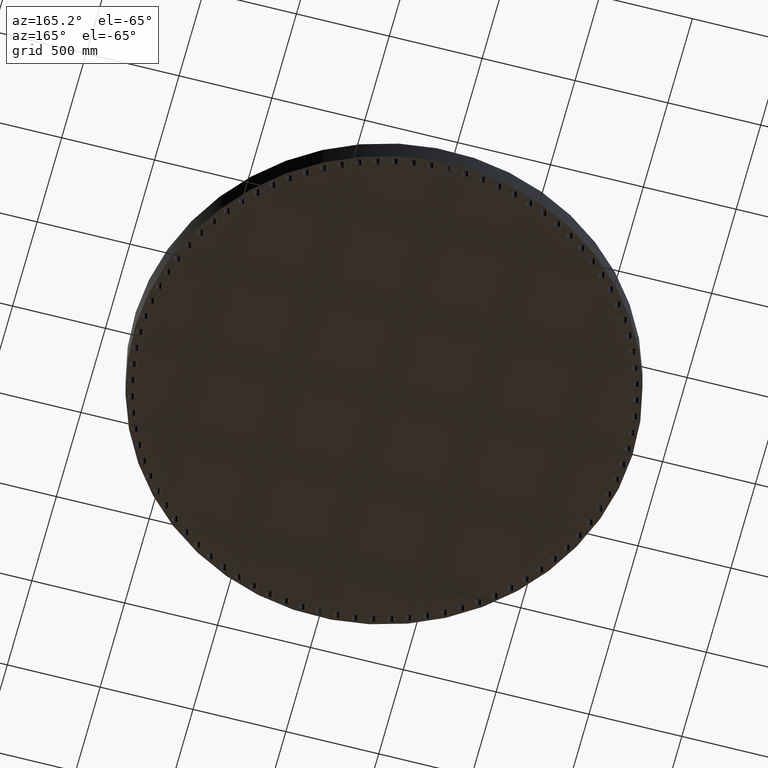
[diagram: clean part render]
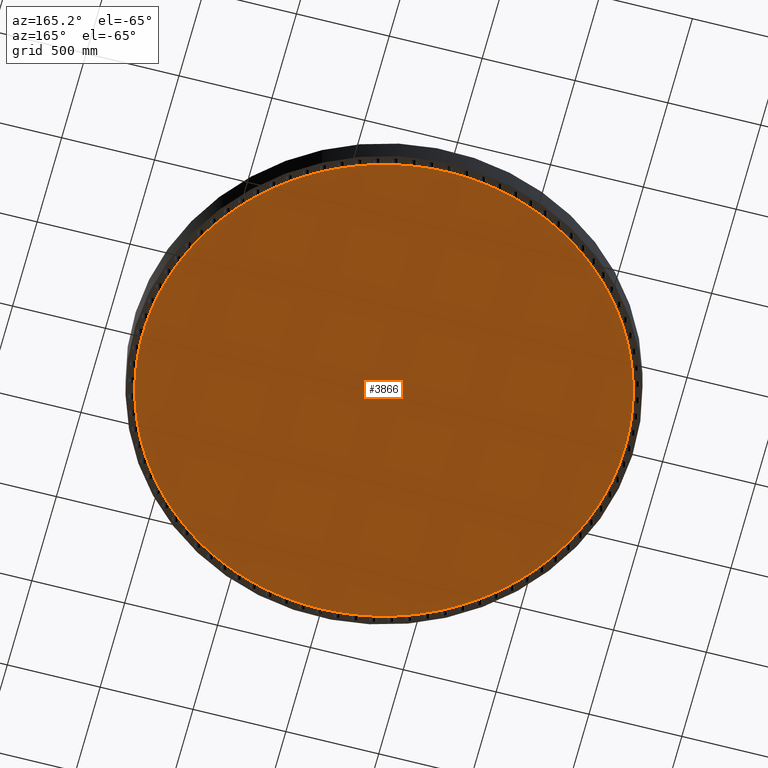
[diagram: same view with one face highlighted and labeled with its STEP entity id]
A machine part, auxiliary view. The second image highlights one B-rep face of the part: STEP entity #3866.
In plain terms, the highlighted planar face has unit normal (0, 0, -1).
Its self-contained STEP definition (entity closure, byte-faithful):
#91=AXIS2_PLACEMENT_3D('Circle Axis2P3D',#89,#90,$) ;
#188=AXIS2_PLACEMENT_3D('Circle Axis2P3D',#186,#187,$) ;
#230=AXIS2_PLACEMENT_3D('Circle Axis2P3D',#228,#229,$) ;
#258=AXIS2_PLACEMENT_3D('Circle Axis2P3D',#256,#257,$) ;
#300=AXIS2_PLACEMENT_3D('Circle Axis2P3D',#298,#299,$) ;
#319=AXIS2_PLACEMENT_3D('Circle Axis2P3D',#317,#318,$) ;
#354=AXIS2_PLACEMENT_3D('Circle Axis2P3D',#352,#353,$) ;
#389=AXIS2_PLACEMENT_3D('Circle Axis2P3D',#387,#388,$) ;
#424=AXIS2_PLACEMENT_3D('Circle Axis2P3D',#422,#423,$) ;
#459=AXIS2_PLACEMENT_3D('Circle Axis2P3D',#457,#458,$) ;
#494=AXIS2_PLACEMENT_3D('Circle Axis2P3D',#492,#493,$) ;
#529=AXIS2_PLACEMENT_3D('Circle Axis2P3D',#527,#528,$) ;
#573=AXIS2_PLACEMENT_3D('Circle Axis2P3D',#571,#572,$) ;
#599=AXIS2_PLACEMENT_3D('Circle Axis2P3D',#597,#598,$) ;
#650=AXIS2_PLACEMENT_3D('Circle Axis2P3D',#648,#649,$) ;
#669=AXIS2_PLACEMENT_3D('Circle Axis2P3D',#667,#668,$) ;
#727=AXIS2_PLACEMENT_3D('Circle Axis2P3D',#725,#726,$) ;
#748=AXIS2_PLACEMENT_3D('Circle Axis2P3D',#746,#747,$) ;
#774=AXIS2_PLACEMENT_3D('Circle Axis2P3D',#772,#773,$) ;
#809=AXIS2_PLACEMENT_3D('Circle Axis2P3D',#807,#808,$) ;
#844=AXIS2_PLACEMENT_3D('Circle Axis2P3D',#842,#843,$) ;
#879=AXIS2_PLACEMENT_3D('Circle Axis2P3D',#877,#878,$) ;
#914=AXIS2_PLACEMENT_3D('Circle Axis2P3D',#912,#913,$) ;
#949=AXIS2_PLACEMENT_3D('Circle Axis2P3D',#947,#948,$) ;
#984=AXIS2_PLACEMENT_3D('Circle Axis2P3D',#982,#983,$) ;
#1019=AXIS2_PLACEMENT_3D('Circle Axis2P3D',#1017,#1018,$) ;
#1054=AXIS2_PLACEMENT_3D('Circle Axis2P3D',#1052,#1053,$) ;
#1089=AXIS2_PLACEMENT_3D('Circle Axis2P3D',#1087,#1088,$) ;
#1124=AXIS2_PLACEMENT_3D('Circle Axis2P3D',#1122,#1123,$) ;
#1168=AXIS2_PLACEMENT_3D('Circle Axis2P3D',#1166,#1167,$) ;
#1203=AXIS2_PLACEMENT_3D('Circle Axis2P3D',#1201,#1202,$) ;
#1238=AXIS2_PLACEMENT_3D('Circle Axis2P3D',#1236,#1237,$) ;
#1273=AXIS2_PLACEMENT_3D('Circle Axis2P3D',#1271,#1272,$) ;
#1308=AXIS2_PLACEMENT_3D('Circle Axis2P3D',#1306,#1307,$) ;
#1343=AXIS2_PLACEMENT_3D('Circle Axis2P3D',#1341,#1342,$) ;
#1378=AXIS2_PLACEMENT_3D('Circle Axis2P3D',#1376,#1377,$) ;
#1413=AXIS2_PLACEMENT_3D('Circle Axis2P3D',#1411,#1412,$) ;
#1448=AXIS2_PLACEMENT_3D('Circle Axis2P3D',#1446,#1447,$) ;
#1483=AXIS2_PLACEMENT_3D('Circle Axis2P3D',#1481,#1482,$) ;
#1518=AXIS2_PLACEMENT_3D('Circle Axis2P3D',#1516,#1517,$) ;
#1553=AXIS2_PLACEMENT_3D('Circle Axis2P3D',#1551,#1552,$) ;
#1588=AXIS2_PLACEMENT_3D('Circle Axis2P3D',#1586,#1587,$) ;
#1623=AXIS2_PLACEMENT_3D('Circle Axis2P3D',#1621,#1622,$) ;
#1658=AXIS2_PLACEMENT_3D('Circle Axis2P3D',#1656,#1657,$) ;
#1693=AXIS2_PLACEMENT_3D('Circle Axis2P3D',#1691,#1692,$) ;
#1735=AXIS2_PLACEMENT_3D('Circle Axis2P3D',#1733,#1734,$) ;
#1754=AXIS2_PLACEMENT_3D('Circle Axis2P3D',#1752,#1753,$) ;
#1789=AXIS2_PLACEMENT_3D('Circle Axis2P3D',#1787,#1788,$) ;
#1824=AXIS2_PLACEMENT_3D('Circle Axis2P3D',#1822,#1823,$) ;
#1859=AXIS2_PLACEMENT_3D('Circle Axis2P3D',#1857,#1858,$) ;
#1894=AXIS2_PLACEMENT_3D('Circle Axis2P3D',#1892,#1893,$) ;
#1938=AXIS2_PLACEMENT_3D('Circle Axis2P3D',#1936,#1937,$) ;
#1973=AXIS2_PLACEMENT_3D('Circle Axis2P3D',#1971,#1972,$) ;
#2008=AXIS2_PLACEMENT_3D('Circle Axis2P3D',#2006,#2007,$) ;
#2050=AXIS2_PLACEMENT_3D('Circle Axis2P3D',#2048,#2049,$) ;
#2069=AXIS2_PLACEMENT_3D('Circle Axis2P3D',#2067,#2068,$) ;
#2104=AXIS2_PLACEMENT_3D('Circle Axis2P3D',#2102,#2103,$) ;
#2139=AXIS2_PLACEMENT_3D('Circle Axis2P3D',#2137,#2138,$) ;
#2174=AXIS2_PLACEMENT_3D('Circle Axis2P3D',#2172,#2173,$) ;
#2225=AXIS2_PLACEMENT_3D('Circle Axis2P3D',#2223,#2224,$) ;
#2260=AXIS2_PLACEMENT_3D('Circle Axis2P3D',#2258,#2259,$) ;
#2279=AXIS2_PLACEMENT_3D('Circle Axis2P3D',#2277,#2278,$) ;
#2328=AXIS2_PLACEMENT_3D('Circle Axis2P3D',#2326,#2327,$) ;
#2340=AXIS2_PLACEMENT_3D('Circle Axis2P3D',#2338,#2339,$) ;
#2391=AXIS2_PLACEMENT_3D('Circle Axis2P3D',#2389,#2390,$) ;
#2426=AXIS2_PLACEMENT_3D('Circle Axis2P3D',#2424,#2425,$) ;
#2461=AXIS2_PLACEMENT_3D('Circle Axis2P3D',#2459,#2460,$) ;
#2496=AXIS2_PLACEMENT_3D('Circle Axis2P3D',#2494,#2495,$) ;
#2531=AXIS2_PLACEMENT_3D('Circle Axis2P3D',#2529,#2530,$) ;
#2566=AXIS2_PLACEMENT_3D('Circle Axis2P3D',#2564,#2565,$) ;
#2601=AXIS2_PLACEMENT_3D('Circle Axis2P3D',#2599,#2600,$) ;
#2636=AXIS2_PLACEMENT_3D('Circle Axis2P3D',#2634,#2635,$) ;
#2671=AXIS2_PLACEMENT_3D('Circle Axis2P3D',#2669,#2670,$) ;
#2706=AXIS2_PLACEMENT_3D('Circle Axis2P3D',#2704,#2705,$) ;
#2741=AXIS2_PLACEMENT_3D('Circle Axis2P3D',#2739,#2740,$) ;
#2776=AXIS2_PLACEMENT_3D('Circle Axis2P3D',#2774,#2775,$) ;
#2811=AXIS2_PLACEMENT_3D('Circle Axis2P3D',#2809,#2810,$) ;
#2846=AXIS2_PLACEMENT_3D('Circle Axis2P3D',#2844,#2845,$) ;
#2888=AXIS2_PLACEMENT_3D('Circle Axis2P3D',#2886,#2887,$) ;
#2923=AXIS2_PLACEMENT_3D('Circle Axis2P3D',#2921,#2922,$) ;
#2958=AXIS2_PLACEMENT_3D('Circle Axis2P3D',#2956,#2957,$) ;
#2970=AXIS2_PLACEMENT_3D('Circle Axis2P3D',#2968,#2969,$) ;
#3021=AXIS2_PLACEMENT_3D('Circle Axis2P3D',#3019,#3020,$) ;
#3056=AXIS2_PLACEMENT_3D('Circle Axis2P3D',#3054,#3055,$) ;
#3098=AXIS2_PLACEMENT_3D('Circle Axis2P3D',#3096,#3097,$) ;
#3126=AXIS2_PLACEMENT_3D('Circle Axis2P3D',#3124,#3125,$) ;
#3145=AXIS2_PLACEMENT_3D('Circle Axis2P3D',#3143,#3144,$) ;
#3180=AXIS2_PLACEMENT_3D('Circle Axis2P3D',#3178,#3179,$) ;
#3215=AXIS2_PLACEMENT_3D('Circle Axis2P3D',#3213,#3214,$) ;
#3251=AXIS2_PLACEMENT_3D('Plane Axis2P3D',#3248,#3249,#3250) ;
#3255=AXIS2_PLACEMENT_3D('Circle Axis2P3D',#3253,#3254,$) ;
#3260=AXIS2_PLACEMENT_3D('Circle Axis2P3D',#3258,#3259,$) ;
#3265=AXIS2_PLACEMENT_3D('Circle Axis2P3D',#3263,#3264,$) ;
#3270=AXIS2_PLACEMENT_3D('Circle Axis2P3D',#3268,#3269,$) ;
#3275=AXIS2_PLACEMENT_3D('Circle Axis2P3D',#3273,#3274,$) ;
#3280=AXIS2_PLACEMENT_3D('Circle Axis2P3D',#3278,#3279,$) ;
#3285=AXIS2_PLACEMENT_3D('Circle Axis2P3D',#3283,#3284,$) ;
#3290=AXIS2_PLACEMENT_3D('Circle Axis2P3D',#3288,#3289,$) ;
#3295=AXIS2_PLACEMENT_3D('Circle Axis2P3D',#3293,#3294,$) ;
#3300=AXIS2_PLACEMENT_3D('Circle Axis2P3D',#3298,#3299,$) ;
#3305=AXIS2_PLACEMENT_3D('Circle Axis2P3D',#3303,#3304,$) ;
#3310=AXIS2_PLACEMENT_3D('Circle Axis2P3D',#3308,#3309,$) ;
#3315=AXIS2_PLACEMENT_3D('Circle Axis2P3D',#3313,#3314,$) ;
#3320=AXIS2_PLACEMENT_3D('Circle Axis2P3D',#3318,#3319,$) ;
#3325=AXIS2_PLACEMENT_3D('Circle Axis2P3D',#3323,#3324,$) ;
#3330=AXIS2_PLACEMENT_3D('Circle Axis2P3D',#3328,#3329,$) ;
#3335=AXIS2_PLACEMENT_3D('Circle Axis2P3D',#3333,#3334,$) ;
#3340=AXIS2_PLACEMENT_3D('Circle Axis2P3D',#3338,#3339,$) ;
#3345=AXIS2_PLACEMENT_3D('Circle Axis2P3D',#3343,#3344,$) ;
#3350=AXIS2_PLACEMENT_3D('Circle Axis2P3D',#3348,#3349,$) ;
#3355=AXIS2_PLACEMENT_3D('Circle Axis2P3D',#3353,#3354,$) ;
#3360=AXIS2_PLACEMENT_3D('Circle Axis2P3D',#3358,#3359,$) ;
#3365=AXIS2_PLACEMENT_3D('Circle Axis2P3D',#3363,#3364,$) ;
#3370=AXIS2_PLACEMENT_3D('Circle Axis2P3D',#3368,#3369,$) ;
#3375=AXIS2_PLACEMENT_3D('Circle Axis2P3D',#3373,#3374,$) ;
#3380=AXIS2_PLACEMENT_3D('Circle Axis2P3D',#3378,#3379,$) ;
#3385=AXIS2_PLACEMENT_3D('Circle Axis2P3D',#3383,#3384,$) ;
#3390=AXIS2_PLACEMENT_3D('Circle Axis2P3D',#3388,#3389,$) ;
#3395=AXIS2_PLACEMENT_3D('Circle Axis2P3D',#3393,#3394,$) ;
#3400=AXIS2_PLACEMENT_3D('Circle Axis2P3D',#3398,#3399,$) ;
#3405=AXIS2_PLACEMENT_3D('Circle Axis2P3D',#3403,#3404,$) ;
#3410=AXIS2_PLACEMENT_3D('Circle Axis2P3D',#3408,#3409,$) ;
#3415=AXIS2_PLACEMENT_3D('Circle Axis2P3D',#3413,#3414,$) ;
#3420=AXIS2_PLACEMENT_3D('Circle Axis2P3D',#3418,#3419,$) ;
#3425=AXIS2_PLACEMENT_3D('Circle Axis2P3D',#3423,#3424,$) ;
#3430=AXIS2_PLACEMENT_3D('Circle Axis2P3D',#3428,#3429,$) ;
#3435=AXIS2_PLACEMENT_3D('Circle Axis2P3D',#3433,#3434,$) ;
#3440=AXIS2_PLACEMENT_3D('Circle Axis2P3D',#3438,#3439,$) ;
#3445=AXIS2_PLACEMENT_3D('Circle Axis2P3D',#3443,#3444,$) ;
#3450=AXIS2_PLACEMENT_3D('Circle Axis2P3D',#3448,#3449,$) ;
#3455=AXIS2_PLACEMENT_3D('Circle Axis2P3D',#3453,#3454,$) ;
#3460=AXIS2_PLACEMENT_3D('Circle Axis2P3D',#3458,#3459,$) ;
#3465=AXIS2_PLACEMENT_3D('Circle Axis2P3D',#3463,#3464,$) ;
#3470=AXIS2_PLACEMENT_3D('Circle Axis2P3D',#3468,#3469,$) ;
#3475=AXIS2_PLACEMENT_3D('Circle Axis2P3D',#3473,#3474,$) ;
#3480=AXIS2_PLACEMENT_3D('Circle Axis2P3D',#3478,#3479,$) ;
#3485=AXIS2_PLACEMENT_3D('Circle Axis2P3D',#3483,#3484,$) ;
#3490=AXIS2_PLACEMENT_3D('Circle Axis2P3D',#3488,#3489,$) ;
#3495=AXIS2_PLACEMENT_3D('Circle Axis2P3D',#3493,#3494,$) ;
#3500=AXIS2_PLACEMENT_3D('Circle Axis2P3D',#3498,#3499,$) ;
#3505=AXIS2_PLACEMENT_3D('Circle Axis2P3D',#3503,#3504,$) ;
#3510=AXIS2_PLACEMENT_3D('Circle Axis2P3D',#3508,#3509,$) ;
#3515=AXIS2_PLACEMENT_3D('Circle Axis2P3D',#3513,#3514,$) ;
#3520=AXIS2_PLACEMENT_3D('Circle Axis2P3D',#3518,#3519,$) ;
#3525=AXIS2_PLACEMENT_3D('Circle Axis2P3D',#3523,#3524,$) ;
#3530=AXIS2_PLACEMENT_3D('Circle Axis2P3D',#3528,#3529,$) ;
#3535=AXIS2_PLACEMENT_3D('Circle Axis2P3D',#3533,#3534,$) ;
#3540=AXIS2_PLACEMENT_3D('Circle Axis2P3D',#3538,#3539,$) ;
#3545=AXIS2_PLACEMENT_3D('Circle Axis2P3D',#3543,#3544,$) ;
#3550=AXIS2_PLACEMENT_3D('Circle Axis2P3D',#3548,#3549,$) ;
#3555=AXIS2_PLACEMENT_3D('Circle Axis2P3D',#3553,#3554,$) ;
#3560=AXIS2_PLACEMENT_3D('Circle Axis2P3D',#3558,#3559,$) ;
#3565=AXIS2_PLACEMENT_3D('Circle Axis2P3D',#3563,#3564,$) ;
#3570=AXIS2_PLACEMENT_3D('Circle Axis2P3D',#3568,#3569,$) ;
#3575=AXIS2_PLACEMENT_3D('Circle Axis2P3D',#3573,#3574,$) ;
#3580=AXIS2_PLACEMENT_3D('Circle Axis2P3D',#3578,#3579,$) ;
#3585=AXIS2_PLACEMENT_3D('Circle Axis2P3D',#3583,#3584,$) ;
#3590=AXIS2_PLACEMENT_3D('Circle Axis2P3D',#3588,#3589,$) ;
#3595=AXIS2_PLACEMENT_3D('Circle Axis2P3D',#3593,#3594,$) ;
#3600=AXIS2_PLACEMENT_3D('Circle Axis2P3D',#3598,#3599,$) ;
#3605=AXIS2_PLACEMENT_3D('Circle Axis2P3D',#3603,#3604,$) ;
#3610=AXIS2_PLACEMENT_3D('Circle Axis2P3D',#3608,#3609,$) ;
#3615=AXIS2_PLACEMENT_3D('Circle Axis2P3D',#3613,#3614,$) ;
#3620=AXIS2_PLACEMENT_3D('Circle Axis2P3D',#3618,#3619,$) ;
#3625=AXIS2_PLACEMENT_3D('Circle Axis2P3D',#3623,#3624,$) ;
#3630=AXIS2_PLACEMENT_3D('Circle Axis2P3D',#3628,#3629,$) ;
#3635=AXIS2_PLACEMENT_3D('Circle Axis2P3D',#3633,#3634,$) ;
#3640=AXIS2_PLACEMENT_3D('Circle Axis2P3D',#3638,#3639,$) ;
#3645=AXIS2_PLACEMENT_3D('Circle Axis2P3D',#3643,#3644,$) ;
#3650=AXIS2_PLACEMENT_3D('Circle Axis2P3D',#3648,#3649,$) ;
#3655=AXIS2_PLACEMENT_3D('Circle Axis2P3D',#3653,#3654,$) ;
#3660=AXIS2_PLACEMENT_3D('Circle Axis2P3D',#3658,#3659,$) ;
#3665=AXIS2_PLACEMENT_3D('Circle Axis2P3D',#3663,#3664,$) ;
#3670=AXIS2_PLACEMENT_3D('Circle Axis2P3D',#3668,#3669,$) ;
#3675=AXIS2_PLACEMENT_3D('Circle Axis2P3D',#3673,#3674,$) ;
#3680=AXIS2_PLACEMENT_3D('Circle Axis2P3D',#3678,#3679,$) ;
#3685=AXIS2_PLACEMENT_3D('Circle Axis2P3D',#3683,#3684,$) ;
#86=CARTESIAN_POINT('Vertex',(51.0649335751,-0.08236499968,-0.0625000000002)) ;
#89=CARTESIAN_POINT('Axis2P3D Location',(51.7500000002,0.,-0.0625000000002)) ;
#93=CARTESIAN_POINT('Vertex',(51.0649335751,0.0823649996801,-0.0625000000002)) ;
#186=CARTESIAN_POINT('Axis2P3D Location',(0.,0.,-0.0625000000002)) ;
#190=CARTESIAN_POINT('Vertex',(50.5568879425,7.18577112043,-0.0625000000002)) ;
#192=CARTESIAN_POINT('Vertex',(50.9289501251,3.72508579447,-0.0625000000002)) ;
#228=CARTESIAN_POINT('Axis2P3D Location',(0.,0.,-0.0625000000002)) ;
#232=CARTESIAN_POINT('Vertex',(50.9407018287,3.56077550827,-0.0625000000002)) ;
#253=CARTESIAN_POINT('Vertex',(50.5334444192,7.34882440592,-0.0625000000002)) ;
#256=CARTESIAN_POINT('Axis2P3D Location',(0.,0.,-0.0625000000002)) ;
#260=CARTESIAN_POINT('Vertex',(49.9154477439,10.7741496901,-0.0625000000002)) ;
#295=CARTESIAN_POINT('Vertex',(49.8804318639,10.9351150927,-0.0625000000002)) ;
#298=CARTESIAN_POINT('Axis2P3D Location',(0.,0.,-0.0625000000002)) ;
#302=CARTESIAN_POINT('Vertex',(49.0196498653,14.3076256626,-0.0625000000002)) ;
#317=CARTESIAN_POINT('Axis2P3D Location',(0.,0.,-0.0625000000002)) ;
#321=CARTESIAN_POINT('Vertex',(47.8740590873,17.7681932543,-0.0625000000002)) ;
#323=CARTESIAN_POINT('Vertex',(48.9732400614,14.4656829395,-0.0625000000002)) ;
#352=CARTESIAN_POINT('Axis2P3D Location',(0.,0.,-0.0625000000002)) ;
#356=CARTESIAN_POINT('Vertex',(46.484513078,21.138218206,-0.0625000000002)) ;
#358=CARTESIAN_POINT('Vertex',(47.8164918533,17.9225369819,-0.0625000000002)) ;
#387=CARTESIAN_POINT('Axis2P3D Location',(0.,0.,-0.0625000000002)) ;
#391=CARTESIAN_POINT('Vertex',(44.8580926451,24.4005276431,-0.0625000000002)) ;
#393=CARTESIAN_POINT('Vertex',(46.4160817631,21.288061884,-0.0625000000002)) ;
#422=CARTESIAN_POINT('Axis2P3D Location',(0.,0.,-0.0625000000002)) ;
#426=CARTESIAN_POINT('Vertex',(43.0030856546,27.5384975844,-0.0625000000002)) ;
#428=CARTESIAN_POINT('Vertex',(44.7791459599,24.5451077025,-0.0625000000002)) ;
#457=CARTESIAN_POINT('Axis2P3D Location',(0.,0.,-0.0625000000002)) ;
#461=CARTESIAN_POINT('Vertex',(40.9289447967,30.5361376544,-0.0625000000002)) ;
#463=CARTESIAN_POINT('Vertex',(42.9140258931,27.6770772783,-0.0625000000002)) ;
#492=CARTESIAN_POINT('Axis2P3D Location',(0.,0.,-0.0625000000002)) ;
#496=CARTESIAN_POINT('Vertex',(38.6462394179,33.3781725664,-0.0625000000002)) ;
#498=CARTESIAN_POINT('Vertex',(40.8302257871,30.6680108125,-0.0625000000002)) ;
#527=CARTESIAN_POINT('Axis2P3D Location',(0.,0.,-0.0625000000002)) ;
#531=CARTESIAN_POINT('Vertex',(36.1666016616,36.050119962,-0.0625000000002)) ;
#533=CARTESIAN_POINT('Vertex',(38.5383642097,33.5026671933,-0.0625000000002)) ;
#568=CARTESIAN_POINT('Vertex',(36.050119962,36.1666016616,-0.0625000000002)) ;
#571=CARTESIAN_POINT('Axis2P3D Location',(0.,0.,-0.0625000000002)) ;
#575=CARTESIAN_POINT('Vertex',(33.5026671933,38.5383642097,-0.0625000000002)) ;
#597=CARTESIAN_POINT('Axis2P3D Location',(0.,0.,-0.0625000000002)) ;
#601=CARTESIAN_POINT('Vertex',(27.6770772783,42.9140258931,-0.0625000000002)) ;
#603=CARTESIAN_POINT('Vertex',(30.5361376544,40.9289447967,-0.0625000000002)) ;
#645=CARTESIAN_POINT('Vertex',(27.5384975844,43.0030856546,-0.0625000000002)) ;
#648=CARTESIAN_POINT('Axis2P3D Location',(0.,0.,-0.0625000000002)) ;
#652=CARTESIAN_POINT('Vertex',(24.5451077025,44.7791459599,-0.0625000000002)) ;
#667=CARTESIAN_POINT('Axis2P3D Location',(0.,0.,-0.0625000000002)) ;
#671=CARTESIAN_POINT('Vertex',(30.6680108125,40.8302257871,-0.0625000000002)) ;
#673=CARTESIAN_POINT('Vertex',(33.3781725664,38.6462394179,-0.0625000000002)) ;
#708=CARTESIAN_POINT('Vertex',(21.288061884,46.4160817631,-0.0625000000002)) ;
#722=CARTESIAN_POINT('Vertex',(24.4005276431,44.8580926451,-0.0625000000002)) ;
#725=CARTESIAN_POINT('Axis2P3D Location',(0.,0.,-0.0625000000002)) ;
#743=CARTESIAN_POINT('Vertex',(21.138218206,46.484513078,-0.0625000000002)) ;
#746=CARTESIAN_POINT('Axis2P3D Location',(0.,0.,-0.0625000000002)) ;
#750=CARTESIAN_POINT('Vertex',(17.9225369819,47.8164918533,-0.0625000000002)) ;
#772=CARTESIAN_POINT('Axis2P3D Location',(0.,0.,-0.0625000000002)) ;
#776=CARTESIAN_POINT('Vertex',(10.9351150927,49.8804318639,-0.0625000000002)) ;
#778=CARTESIAN_POINT('Vertex',(14.3076256626,49.0196498653,-0.0625000000002)) ;
#807=CARTESIAN_POINT('Axis2P3D Location',(0.,0.,-0.0625000000002)) ;
#811=CARTESIAN_POINT('Vertex',(7.34882440592,50.5334444192,-0.0625000000002)) ;
#813=CARTESIAN_POINT('Vertex',(10.7741496901,49.9154477439,-0.0625000000002)) ;
#842=CARTESIAN_POINT('Axis2P3D Location',(0.,0.,-0.0625000000002)) ;
#846=CARTESIAN_POINT('Vertex',(3.72508579447,50.9289501251,-0.0625000000002)) ;
#848=CARTESIAN_POINT('Vertex',(7.18577112043,50.5568879425,-0.0625000000002)) ;
#877=CARTESIAN_POINT('Axis2P3D Location',(0.,0.,-0.0625000000002)) ;
#881=CARTESIAN_POINT('Vertex',(0.08236499968,51.0649335751,-0.0625000000002)) ;
#883=CARTESIAN_POINT('Vertex',(3.56077550827,50.9407018287,-0.0625000000002)) ;
#912=CARTESIAN_POINT('Axis2P3D Location',(0.,0.,-0.0625000000002)) ;
#916=CARTESIAN_POINT('Vertex',(-3.56077550827,50.9407018287,-0.0625000000002)) ;
#918=CARTESIAN_POINT('Vertex',(-0.0823649996801,51.0649335751,-0.0625000000002)) ;
#947=CARTESIAN_POINT('Axis2P3D Location',(0.,0.,-0.0625000000002)) ;
#951=CARTESIAN_POINT('Vertex',(-7.18577112043,50.5568879425,-0.0625000000002)) ;
#953=CARTESIAN_POINT('Vertex',(-3.72508579447,50.9289501251,-0.0625000000002)) ;
#982=CARTESIAN_POINT('Axis2P3D Location',(0.,0.,-0.0625000000002)) ;
#986=CARTESIAN_POINT('Vertex',(-10.7741496901,49.9154477439,-0.0625000000002)) ;
#988=CARTESIAN_POINT('Vertex',(-7.34882440592,50.5334444192,-0.0625000000002)) ;
#1017=CARTESIAN_POINT('Axis2P3D Location',(0.,0.,-0.0625000000002)) ;
#1021=CARTESIAN_POINT('Vertex',(-14.3076256626,49.0196498653,-0.0625000000002)) ;
#1023=CARTESIAN_POINT('Vertex',(-10.9351150927,49.8804318639,-0.0625000000002)) ;
#1052=CARTESIAN_POINT('Axis2P3D Location',(0.,0.,-0.0625000000002)) ;
#1056=CARTESIAN_POINT('Vertex',(-17.7681932543,47.8740590873,-0.0625000000002)) ;
#1058=CARTESIAN_POINT('Vertex',(-14.4656829395,48.9732400614,-0.0625000000002)) ;
#1087=CARTESIAN_POINT('Axis2P3D Location',(0.,0.,-0.0625000000002)) ;
#1091=CARTESIAN_POINT('Vertex',(-21.138218206,46.484513078,-0.0625000000002)) ;
#1093=CARTESIAN_POINT('Vertex',(-17.9225369819,47.8164918533,-0.0625000000002)) ;
#1122=CARTESIAN_POINT('Axis2P3D Location',(0.,0.,-0.0625000000002)) ;
#1126=CARTESIAN_POINT('Vertex',(-24.4005276431,44.8580926451,-0.0625000000002)) ;
#1128=CARTESIAN_POINT('Vertex',(-21.288061884,46.4160817631,-0.0625000000002)) ;
#1163=CARTESIAN_POINT('Vertex',(-24.5451077025,44.7791459599,-0.0625000000002)) ;
#1166=CARTESIAN_POINT('Axis2P3D Location',(0.,0.,-0.0625000000002)) ;
#1170=CARTESIAN_POINT('Vertex',(-27.5384975844,43.0030856546,-0.0625000000002)) ;
#1198=CARTESIAN_POINT('Vertex',(-27.6770772783,42.9140258931,-0.0625000000002)) ;
#1201=CARTESIAN_POINT('Axis2P3D Location',(0.,0.,-0.0625000000002)) ;
#1205=CARTESIAN_POINT('Vertex',(-30.5361376544,40.9289447967,-0.0625000000002)) ;
#1233=CARTESIAN_POINT('Vertex',(-30.6680108125,40.8302257871,-0.0625000000002)) ;
#1236=CARTESIAN_POINT('Axis2P3D Location',(0.,0.,-0.0625000000002)) ;
#1240=CARTESIAN_POINT('Vertex',(-33.3781725664,38.6462394179,-0.0625000000002)) ;
#1268=CARTESIAN_POINT('Vertex',(-33.5026671933,38.5383642097,-0.0625000000002)) ;
#1271=CARTESIAN_POINT('Axis2P3D Location',(0.,0.,-0.0625000000002)) ;
#1275=CARTESIAN_POINT('Vertex',(-36.050119962,36.1666016616,-0.0625000000002)) ;
#1303=CARTESIAN_POINT('Vertex',(-36.1666016616,36.050119962,-0.0625000000002)) ;
#1306=CARTESIAN_POINT('Axis2P3D Location',(0.,0.,-0.0625000000002)) ;
#1310=CARTESIAN_POINT('Vertex',(-38.5383642097,33.5026671933,-0.0625000000002)) ;
#1338=CARTESIAN_POINT('Vertex',(-38.6462394179,33.3781725664,-0.0625000000002)) ;
#1341=CARTESIAN_POINT('Axis2P3D Location',(0.,0.,-0.0625000000002)) ;
#1345=CARTESIAN_POINT('Vertex',(-40.8302257871,30.6680108125,-0.0625000000002)) ;
#1373=CARTESIAN_POINT('Vertex',(-40.9289447967,30.5361376544,-0.0625000000002)) ;
#1376=CARTESIAN_POINT('Axis2P3D Location',(0.,0.,-0.0625000000002)) ;
#1380=CARTESIAN_POINT('Vertex',(-42.9140258931,27.6770772783,-0.0625000000002)) ;
#1408=CARTESIAN_POINT('Vertex',(-43.0030856546,27.5384975844,-0.0625000000002)) ;
#1411=CARTESIAN_POINT('Axis2P3D Location',(0.,0.,-0.0625000000002)) ;
#1415=CARTESIAN_POINT('Vertex',(-44.7791459599,24.5451077025,-0.0625000000002)) ;
#1443=CARTESIAN_POINT('Vertex',(-44.8580926451,24.4005276431,-0.0625000000002)) ;
#1446=CARTESIAN_POINT('Axis2P3D Location',(0.,0.,-0.0625000000002)) ;
#1450=CARTESIAN_POINT('Vertex',(-46.4160817631,21.288061884,-0.0625000000002)) ;
#1478=CARTESIAN_POINT('Vertex',(-46.484513078,21.138218206,-0.0625000000002)) ;
#1481=CARTESIAN_POINT('Axis2P3D Location',(0.,0.,-0.0625000000002)) ;
#1485=CARTESIAN_POINT('Vertex',(-47.8164918533,17.9225369819,-0.0625000000002)) ;
#1513=CARTESIAN_POINT('Vertex',(-47.8740590873,17.7681932543,-0.0625000000002)) ;
#1516=CARTESIAN_POINT('Axis2P3D Location',(0.,0.,-0.0625000000002)) ;
#1520=CARTESIAN_POINT('Vertex',(-48.9732400614,14.4656829395,-0.0625000000002)) ;
#1548=CARTESIAN_POINT('Vertex',(-49.0196498653,14.3076256626,-0.0625000000002)) ;
#1551=CARTESIAN_POINT('Axis2P3D Location',(0.,0.,-0.0625000000002)) ;
#1555=CARTESIAN_POINT('Vertex',(-49.8804318639,10.9351150927,-0.0625000000002)) ;
#1583=CARTESIAN_POINT('Vertex',(-49.9154477439,10.7741496901,-0.0625000000002)) ;
#1586=CARTESIAN_POINT('Axis2P3D Location',(0.,0.,-0.0625000000002)) ;
#1590=CARTESIAN_POINT('Vertex',(-50.5334444192,7.34882440592,-0.0625000000002)) ;
#1618=CARTESIAN_POINT('Vertex',(-50.5568879425,7.18577112043,-0.0625000000002)) ;
#1621=CARTESIAN_POINT('Axis2P3D Location',(0.,0.,-0.0625000000002)) ;
#1625=CARTESIAN_POINT('Vertex',(-50.9289501251,3.72508579447,-0.0625000000002)) ;
#1653=CARTESIAN_POINT('Vertex',(-50.9407018287,3.56077550827,-0.0625000000002)) ;
#1656=CARTESIAN_POINT('Axis2P3D Location',(0.,0.,-0.0625000000002)) ;
#1660=CARTESIAN_POINT('Vertex',(-51.0649335751,0.0823649996801,-0.0625000000002)) ;
#1688=CARTESIAN_POINT('Vertex',(-51.0649335751,-0.0823649996801,-0.0625000000002)) ;
#1691=CARTESIAN_POINT('Axis2P3D Location',(0.,0.,-0.0625000000002)) ;
#1695=CARTESIAN_POINT('Vertex',(-50.9407018287,-3.56077550827,-0.0625000000002)) ;
#1730=CARTESIAN_POINT('Vertex',(-50.9289501251,-3.72508579447,-0.0625000000002)) ;
#1733=CARTESIAN_POINT('Axis2P3D Location',(0.,0.,-0.0625000000002)) ;
#1737=CARTESIAN_POINT('Vertex',(-50.5568879425,-7.18577112043,-0.0625000000002)) ;
#1752=CARTESIAN_POINT('Axis2P3D Location',(0.,0.,-0.0625000000002)) ;
#1756=CARTESIAN_POINT('Vertex',(-47.8740590873,-17.7681932543,-0.0625000000002)) ;
#1758=CARTESIAN_POINT('Vertex',(-48.9732400614,-14.4656829395,-0.0625000000002)) ;
#1787=CARTESIAN_POINT('Axis2P3D Location',(0.,0.,-0.0625000000002)) ;
#1791=CARTESIAN_POINT('Vertex',(-46.484513078,-21.138218206,-0.0625000000002)) ;
#1793=CARTESIAN_POINT('Vertex',(-47.8164918533,-17.9225369819,-0.0625000000002)) ;
#1822=CARTESIAN_POINT('Axis2P3D Location',(0.,0.,-0.0625000000002)) ;
#1826=CARTESIAN_POINT('Vertex',(-44.8580926451,-24.4005276431,-0.0625000000002)) ;
#1828=CARTESIAN_POINT('Vertex',(-46.4160817631,-21.288061884,-0.0625000000002)) ;
#1857=CARTESIAN_POINT('Axis2P3D Location',(0.,0.,-0.0625000000002)) ;
#1861=CARTESIAN_POINT('Vertex',(-43.0030856546,-27.5384975844,-0.0625000000002)) ;
#1863=CARTESIAN_POINT('Vertex',(-44.7791459599,-24.5451077025,-0.0625000000002)) ;
#1892=CARTESIAN_POINT('Axis2P3D Location',(0.,0.,-0.0625000000002)) ;
#1896=CARTESIAN_POINT('Vertex',(-40.9289447967,-30.5361376544,-0.0625000000002)) ;
#1898=CARTESIAN_POINT('Vertex',(-42.9140258931,-27.6770772783,-0.0625000000002)) ;
#1933=CARTESIAN_POINT('Vertex',(-40.8302257871,-30.6680108125,-0.0625000000002)) ;
#1936=CARTESIAN_POINT('Axis2P3D Location',(0.,0.,-0.0625000000002)) ;
#1940=CARTESIAN_POINT('Vertex',(-38.6462394179,-33.3781725664,-0.0625000000002)) ;
#1968=CARTESIAN_POINT('Vertex',(-38.5383642097,-33.5026671933,-0.0625000000002)) ;
#1971=CARTESIAN_POINT('Axis2P3D Location',(0.,0.,-0.0625000000002)) ;
#1975=CARTESIAN_POINT('Vertex',(-36.1666016616,-36.050119962,-0.0625000000002)) ;
#2003=CARTESIAN_POINT('Vertex',(-36.050119962,-36.1666016616,-0.0625000000002)) ;
#2006=CARTESIAN_POINT('Axis2P3D Location',(0.,0.,-0.0625000000002)) ;
#2010=CARTESIAN_POINT('Vertex',(-33.5026671933,-38.5383642097,-0.0625000000002)) ;
#2045=CARTESIAN_POINT('Vertex',(-33.3781725664,-38.6462394179,-0.0625000000002)) ;
#2048=CARTESIAN_POINT('Axis2P3D Location',(0.,0.,-0.0625000000002)) ;
#2052=CARTESIAN_POINT('Vertex',(-30.6680108125,-40.8302257871,-0.0625000000002)) ;
#2067=CARTESIAN_POINT('Axis2P3D Location',(0.,0.,-0.0625000000002)) ;
#2071=CARTESIAN_POINT('Vertex',(-27.6770772783,-42.9140258931,-0.0625000000002)) ;
#2073=CARTESIAN_POINT('Vertex',(-30.5361376544,-40.9289447967,-0.0625000000002)) ;
#2102=CARTESIAN_POINT('Axis2P3D Location',(0.,0.,-0.0625000000002)) ;
#2106=CARTESIAN_POINT('Vertex',(-24.5451077025,-44.7791459599,-0.0625000000002)) ;
#2108=CARTESIAN_POINT('Vertex',(-27.5384975844,-43.0030856546,-0.0625000000002)) ;
#2137=CARTESIAN_POINT('Axis2P3D Location',(0.,0.,-0.0625000000002)) ;
#2141=CARTESIAN_POINT('Vertex',(-49.9154477439,-10.7741496901,-0.0625000000002)) ;
#2143=CARTESIAN_POINT('Vertex',(-50.5334444192,-7.34882440592,-0.0625000000002)) ;
#2172=CARTESIAN_POINT('Axis2P3D Location',(0.,0.,-0.0625000000002)) ;
#2176=CARTESIAN_POINT('Vertex',(-49.0196498653,-14.3076256626,-0.0625000000002)) ;
#2178=CARTESIAN_POINT('Vertex',(-49.8804318639,-10.9351150927,-0.0625000000002)) ;
#2220=CARTESIAN_POINT('Vertex',(17.7681932543,47.8740590873,-0.0625000000002)) ;
#2223=CARTESIAN_POINT('Axis2P3D Location',(0.,0.,-0.0625000000002)) ;
#2227=CARTESIAN_POINT('Vertex',(14.4656829395,48.9732400614,-0.0625000000002)) ;
#2255=CARTESIAN_POINT('Vertex',(50.5568879425,-7.18577112043,-0.0625000000002)) ;
#2258=CARTESIAN_POINT('Axis2P3D Location',(0.,0.,-0.0625000000002)) ;
#2262=CARTESIAN_POINT('Vertex',(50.9289501251,-3.72508579447,-0.0625000000002)) ;
#2277=CARTESIAN_POINT('Axis2P3D Location',(0.,0.,-0.0625000000002)) ;
#2281=CARTESIAN_POINT('Vertex',(50.9407018287,-3.56077550827,-0.0625000000002)) ;
#2309=CARTESIAN_POINT('Vertex',(50.5334444192,-7.34882440592,-0.0625000000002)) ;
#2323=CARTESIAN_POINT('Vertex',(49.9154477439,-10.7741496901,-0.0625000000002)) ;
#2326=CARTESIAN_POINT('Axis2P3D Location',(0.,0.,-0.0625000000002)) ;
#2338=CARTESIAN_POINT('Axis2P3D Location',(0.,0.,-0.0625000000002)) ;
#2342=CARTESIAN_POINT('Vertex',(49.8804318639,-10.9351150927,-0.0625000000002)) ;
#2344=CARTESIAN_POINT('Vertex',(49.0196498653,-14.3076256626,-0.0625000000002)) ;
#2386=CARTESIAN_POINT('Vertex',(47.8740590873,-17.7681932543,-0.0625000000002)) ;
#2389=CARTESIAN_POINT('Axis2P3D Location',(0.,0.,-0.0625000000002)) ;
#2393=CARTESIAN_POINT('Vertex',(48.9732400614,-14.4656829395,-0.0625000000002)) ;
#2421=CARTESIAN_POINT('Vertex',(46.484513078,-21.138218206,-0.0625000000002)) ;
#2424=CARTESIAN_POINT('Axis2P3D Location',(0.,0.,-0.0625000000002)) ;
#2428=CARTESIAN_POINT('Vertex',(47.8164918533,-17.9225369819,-0.0625000000002)) ;
#2456=CARTESIAN_POINT('Vertex',(44.8580926451,-24.4005276431,-0.0625000000002)) ;
#2459=CARTESIAN_POINT('Axis2P3D Location',(0.,0.,-0.0625000000002)) ;
#2463=CARTESIAN_POINT('Vertex',(46.4160817631,-21.288061884,-0.0625000000002)) ;
#2491=CARTESIAN_POINT('Vertex',(43.0030856546,-27.5384975844,-0.0625000000002)) ;
#2494=CARTESIAN_POINT('Axis2P3D Location',(0.,0.,-0.0625000000002)) ;
#2498=CARTESIAN_POINT('Vertex',(44.7791459599,-24.5451077025,-0.0625000000002)) ;
#2526=CARTESIAN_POINT('Vertex',(40.9289447967,-30.5361376544,-0.0625000000002)) ;
#2529=CARTESIAN_POINT('Axis2P3D Location',(0.,0.,-0.0625000000002)) ;
#2533=CARTESIAN_POINT('Vertex',(42.9140258931,-27.6770772783,-0.0625000000002)) ;
#2561=CARTESIAN_POINT('Vertex',(38.6462394179,-33.3781725664,-0.0625000000002)) ;
#2564=CARTESIAN_POINT('Axis2P3D Location',(0.,0.,-0.0625000000002)) ;
#2568=CARTESIAN_POINT('Vertex',(40.8302257871,-30.6680108125,-0.0625000000002)) ;
#2596=CARTESIAN_POINT('Vertex',(36.1666016616,-36.050119962,-0.0625000000002)) ;
#2599=CARTESIAN_POINT('Axis2P3D Location',(0.,0.,-0.0625000000002)) ;
#2603=CARTESIAN_POINT('Vertex',(38.5383642097,-33.5026671933,-0.0625000000002)) ;
#2631=CARTESIAN_POINT('Vertex',(33.5026671933,-38.5383642097,-0.0625000000002)) ;
#2634=CARTESIAN_POINT('Axis2P3D Location',(0.,0.,-0.0625000000002)) ;
#2638=CARTESIAN_POINT('Vertex',(36.050119962,-36.1666016616,-0.0625000000002)) ;
#2666=CARTESIAN_POINT('Vertex',(30.6680108125,-40.8302257871,-0.0625000000002)) ;
#2669=CARTESIAN_POINT('Axis2P3D Location',(0.,0.,-0.0625000000002)) ;
#2673=CARTESIAN_POINT('Vertex',(33.3781725664,-38.6462394179,-0.0625000000002)) ;
#2701=CARTESIAN_POINT('Vertex',(27.6770772783,-42.9140258931,-0.0625000000002)) ;
#2704=CARTESIAN_POINT('Axis2P3D Location',(0.,0.,-0.0625000000002)) ;
#2708=CARTESIAN_POINT('Vertex',(30.5361376544,-40.9289447967,-0.0625000000002)) ;
#2736=CARTESIAN_POINT('Vertex',(24.5451077025,-44.7791459599,-0.0625000000002)) ;
#2739=CARTESIAN_POINT('Axis2P3D Location',(0.,0.,-0.0625000000002)) ;
#2743=CARTESIAN_POINT('Vertex',(27.5384975844,-43.0030856546,-0.0625000000002)) ;
#2771=CARTESIAN_POINT('Vertex',(21.288061884,-46.4160817631,-0.0625000000002)) ;
#2774=CARTESIAN_POINT('Axis2P3D Location',(0.,0.,-0.0625000000002)) ;
#2778=CARTESIAN_POINT('Vertex',(24.4005276431,-44.8580926451,-0.0625000000002)) ;
#2806=CARTESIAN_POINT('Vertex',(17.9225369819,-47.8164918533,-0.0625000000002)) ;
#2809=CARTESIAN_POINT('Axis2P3D Location',(0.,0.,-0.0625000000002)) ;
#2813=CARTESIAN_POINT('Vertex',(21.138218206,-46.484513078,-0.0625000000002)) ;
#2841=CARTESIAN_POINT('Vertex',(14.4656829395,-48.9732400614,-0.0625000000002)) ;
#2844=CARTESIAN_POINT('Axis2P3D Location',(0.,0.,-0.0625000000002)) ;
#2848=CARTESIAN_POINT('Vertex',(17.7681932543,-47.8740590873,-0.0625000000002)) ;
#2869=CARTESIAN_POINT('Vertex',(14.3076256626,-49.0196498653,-0.0625000000002)) ;
#2883=CARTESIAN_POINT('Vertex',(10.9351150927,-49.8804318639,-0.0625000000002)) ;
#2886=CARTESIAN_POINT('Axis2P3D Location',(0.,0.,-0.0625000000002)) ;
#2904=CARTESIAN_POINT('Vertex',(10.7741496901,-49.9154477439,-0.0625000000002)) ;
#2918=CARTESIAN_POINT('Vertex',(7.34882440592,-50.5334444192,-0.0625000000002)) ;
#2921=CARTESIAN_POINT('Axis2P3D Location',(0.,0.,-0.0625000000002)) ;
#2939=CARTESIAN_POINT('Vertex',(7.18577112043,-50.5568879425,-0.0625000000002)) ;
#2953=CARTESIAN_POINT('Vertex',(3.72508579447,-50.9289501251,-0.0625000000002)) ;
#2956=CARTESIAN_POINT('Axis2P3D Location',(0.,0.,-0.0625000000002)) ;
#2968=CARTESIAN_POINT('Axis2P3D Location',(0.,0.,-0.0625000000002)) ;
#2972=CARTESIAN_POINT('Vertex',(-7.34882440592,-50.5334444192,-0.0625000000002)) ;
#2974=CARTESIAN_POINT('Vertex',(-10.7741496901,-49.9154477439,-0.0625000000002)) ;
#3016=CARTESIAN_POINT('Vertex',(-14.3076256626,-49.0196498653,-0.0625000000002)) ;
#3019=CARTESIAN_POINT('Axis2P3D Location',(0.,0.,-0.0625000000002)) ;
#3023=CARTESIAN_POINT('Vertex',(-10.9351150927,-49.8804318639,-0.0625000000002)) ;
#3051=CARTESIAN_POINT('Vertex',(-17.7681932543,-47.8740590873,-0.0625000000002)) ;
#3054=CARTESIAN_POINT('Axis2P3D Location',(0.,0.,-0.0625000000002)) ;
#3058=CARTESIAN_POINT('Vertex',(-14.4656829395,-48.9732400614,-0.0625000000002)) ;
#3079=CARTESIAN_POINT('Vertex',(-17.9225369819,-47.8164918533,-0.0625000000002)) ;
#3093=CARTESIAN_POINT('Vertex',(-21.138218206,-46.484513078,-0.0625000000002)) ;
#3096=CARTESIAN_POINT('Axis2P3D Location',(0.,0.,-0.0625000000002)) ;
#3121=CARTESIAN_POINT('Vertex',(-24.4005276431,-44.8580926451,-0.0625000000002)) ;
#3124=CARTESIAN_POINT('Axis2P3D Location',(0.,0.,-0.0625000000002)) ;
#3128=CARTESIAN_POINT('Vertex',(-21.288061884,-46.4160817631,-0.0625000000002)) ;
#3143=CARTESIAN_POINT('Axis2P3D Location',(0.,0.,-0.0625000000002)) ;
#3147=CARTESIAN_POINT('Vertex',(-0.0823649996801,-51.0649335751,-0.0625000000002)) ;
#3149=CARTESIAN_POINT('Vertex',(-3.56077550827,-50.9407018287,-0.0625000000002)) ;
#3178=CARTESIAN_POINT('Axis2P3D Location',(0.,0.,-0.0625000000002)) ;
#3182=CARTESIAN_POINT('Vertex',(3.56077550827,-50.9407018287,-0.0625000000002)) ;
#3184=CARTESIAN_POINT('Vertex',(0.0823649996801,-51.0649335751,-0.0625000000002)) ;
#3213=CARTESIAN_POINT('Axis2P3D Location',(0.,0.,-0.0625000000002)) ;
#3217=CARTESIAN_POINT('Vertex',(-3.72508579447,-50.9289501251,-0.0625000000002)) ;
#3219=CARTESIAN_POINT('Vertex',(-7.18577112043,-50.5568879425,-0.0625000000002)) ;
#3248=CARTESIAN_POINT('Axis2P3D Location',(0.,0.,-0.0625000000002)) ;
#3253=CARTESIAN_POINT('Axis2P3D Location',(51.2232596175,-7.36479288067,-0.0625000000002)) ;
#3258=CARTESIAN_POINT('Axis2P3D Location',(50.5673503142,-11.0002537344,-0.0625000000002)) ;
#3263=CARTESIAN_POINT('Axis2P3D Location',(49.6537613847,-14.5796598166,-0.0625000000002)) ;
#3268=CARTESIAN_POINT('Axis2P3D Location',(48.4871482689,-18.0847712943,-0.0625000000002)) ;
#3273=CARTESIAN_POINT('Axis2P3D Location',(47.0734557598,-21.4977269229,-0.0625000000002)) ;
#3278=CARTESIAN_POINT('Axis2P3D Location',(45.4198877103,-24.8011350629,-0.0625000000002)) ;
#3283=CARTESIAN_POINT('Axis2P3D Location',(43.5348703242,-27.9781623034,-0.0625000000002)) ;
#3288=CARTESIAN_POINT('Axis2P3D Location',(41.428009218,-31.0126192421,-0.0625000000002)) ;
#3293=CARTESIAN_POINT('Axis2P3D Location',(39.110040473,-33.8890429818,-0.0625000000002)) ;
#3298=CARTESIAN_POINT('Axis2P3D Location',(36.5927759266,-36.5927759266,-0.0625000000002)) ;
#3303=CARTESIAN_POINT('Axis2P3D Location',(33.8890429818,-39.110040473,-0.0625000000002)) ;
#3308=CARTESIAN_POINT('Axis2P3D Location',(31.0126192421,-41.428009218,-0.0625000000002)) ;
#3313=CARTESIAN_POINT('Axis2P3D Location',(27.9781623034,-43.5348703242,-0.0625000000002)) ;
#3318=CARTESIAN_POINT('Axis2P3D Location',(24.8011350629,-45.4198877103,-0.0625000000002)) ;
#3323=CARTESIAN_POINT('Axis2P3D Location',(21.4977269229,-47.0734557598,-0.0625000000002)) ;
#3328=CARTESIAN_POINT('Axis2P3D Location',(18.0847712943,-48.4871482689,-0.0625000000002)) ;
#3333=CARTESIAN_POINT('Axis2P3D Location',(14.5796598166,-49.6537613847,-0.0625000000002)) ;
#3338=CARTESIAN_POINT('Axis2P3D Location',(11.0002537344,-50.5673503142,-0.0625000000002)) ;
#3343=CARTESIAN_POINT('Axis2P3D Location',(7.36479288067,-51.2232596175,-0.0625000000002)) ;
#3348=CARTESIAN_POINT('Axis2P3D Location',(3.69180273058,-51.6181469313,-0.0625000000002)) ;
#3353=CARTESIAN_POINT('Axis2P3D Location',(-6.25921012308E-015,-51.7500000002,-0.0625000000002)) ;
#3358=CARTESIAN_POINT('Axis2P3D Location',(-3.69180273058,-51.6181469313,-0.0625000000002)) ;
#3363=CARTESIAN_POINT('Axis2P3D Location',(-7.36479288067,-51.2232596175,-0.0625000000002)) ;
#3368=CARTESIAN_POINT('Axis2P3D Location',(-11.0002537344,-50.5673503142,-0.0625000000002)) ;
#3373=CARTESIAN_POINT('Axis2P3D Location',(-14.5796598166,-49.6537613847,-0.0625000000002)) ;
#3378=CARTESIAN_POINT('Axis2P3D Location',(-18.0847712943,-48.4871482689,-0.0625000000002)) ;
#3383=CARTESIAN_POINT('Axis2P3D Location',(-21.4977269229,-47.0734557598,-0.0625000000002)) ;
#3388=CARTESIAN_POINT('Axis2P3D Location',(-24.8011350629,-45.4198877103,-0.0625000000002)) ;
#3393=CARTESIAN_POINT('Axis2P3D Location',(-27.9781623034,-43.5348703242,-0.0625000000002)) ;
#3398=CARTESIAN_POINT('Axis2P3D Location',(-31.0126192421,-41.428009218,-0.0625000000002)) ;
#3403=CARTESIAN_POINT('Axis2P3D Location',(-33.8890429818,-39.110040473,-0.0625000000002)) ;
#3408=CARTESIAN_POINT('Axis2P3D Location',(-36.5927759266,-36.5927759266,-0.0625000000002)) ;
#3413=CARTESIAN_POINT('Axis2P3D Location',(-39.110040473,-33.8890429818,-0.0625000000002)) ;
#3418=CARTESIAN_POINT('Axis2P3D Location',(-41.428009218,-31.0126192421,-0.0625000000002)) ;
#3423=CARTESIAN_POINT('Axis2P3D Location',(-43.5348703242,-27.9781623034,-0.0625000000002)) ;
#3428=CARTESIAN_POINT('Axis2P3D Location',(-45.4198877103,-24.8011350629,-0.0625000000002)) ;
#3433=CARTESIAN_POINT('Axis2P3D Location',(-47.0734557598,-21.4977269229,-0.0625000000002)) ;
#3438=CARTESIAN_POINT('Axis2P3D Location',(-48.4871482689,-18.0847712943,-0.0625000000002)) ;
#3443=CARTESIAN_POINT('Axis2P3D Location',(-49.6537613847,-14.5796598166,-0.0625000000002)) ;
#3448=CARTESIAN_POINT('Axis2P3D Location',(-50.5673503142,-11.0002537344,-0.0625000000002)) ;
#3453=CARTESIAN_POINT('Axis2P3D Location',(-51.2232596175,-7.36479288067,-0.0625000000002)) ;
#3458=CARTESIAN_POINT('Axis2P3D Location',(-51.6181469313,-3.69180273058,-0.0625000000002)) ;
#3463=CARTESIAN_POINT('Axis2P3D Location',(-51.7500000002,-6.22424246876E-015,-0.0625000000002)) ;
#3468=CARTESIAN_POINT('Axis2P3D Location',(-51.6181469313,3.69180273058,-0.0625000000002)) ;
#3473=CARTESIAN_POINT('Axis2P3D Location',(-51.2232596175,7.36479288067,-0.0625000000002)) ;
#3478=CARTESIAN_POINT('Axis2P3D Location',(-50.5673503142,11.0002537344,-0.0625000000002)) ;
#3483=CARTESIAN_POINT('Axis2P3D Location',(-49.6537613847,14.5796598166,-0.0625000000002)) ;
#3488=CARTESIAN_POINT('Axis2P3D Location',(-48.4871482689,18.0847712943,-0.0625000000002)) ;
#3493=CARTESIAN_POINT('Axis2P3D Location',(-47.0734557598,21.4977269229,-0.0625000000002)) ;
#3498=CARTESIAN_POINT('Axis2P3D Location',(-45.4198877103,24.8011350629,-0.0625000000002)) ;
#3503=CARTESIAN_POINT('Axis2P3D Location',(-43.5348703242,27.9781623034,-0.0625000000002)) ;
#3508=CARTESIAN_POINT('Axis2P3D Location',(-41.428009218,31.0126192421,-0.0625000000002)) ;
#3513=CARTESIAN_POINT('Axis2P3D Location',(-39.110040473,33.8890429818,-0.0625000000002)) ;
#3518=CARTESIAN_POINT('Axis2P3D Location',(-36.5927759266,36.5927759266,-0.0625000000002)) ;
#3523=CARTESIAN_POINT('Axis2P3D Location',(-33.8890429818,39.110040473,-0.0625000000002)) ;
#3528=CARTESIAN_POINT('Axis2P3D Location',(-31.0126192421,41.428009218,-0.0625000000002)) ;
#3533=CARTESIAN_POINT('Axis2P3D Location',(-27.9781623034,43.5348703242,-0.0625000000002)) ;
#3538=CARTESIAN_POINT('Axis2P3D Location',(-24.8011350629,45.4198877103,-0.0625000000002)) ;
#3543=CARTESIAN_POINT('Axis2P3D Location',(-21.4977269229,47.0734557598,-0.0625000000002)) ;
#3548=CARTESIAN_POINT('Axis2P3D Location',(-18.0847712943,48.4871482689,-0.0625000000002)) ;
#3553=CARTESIAN_POINT('Axis2P3D Location',(-14.5796598166,49.6537613847,-0.0625000000002)) ;
#3558=CARTESIAN_POINT('Axis2P3D Location',(-11.0002537344,50.5673503142,-0.0625000000002)) ;
#3563=CARTESIAN_POINT('Axis2P3D Location',(-7.36479288067,51.2232596175,-0.0625000000002)) ;
#3568=CARTESIAN_POINT('Axis2P3D Location',(-3.69180273058,51.6181469313,-0.0625000000002)) ;
#3573=CARTESIAN_POINT('Axis2P3D Location',(-8.95171950564E-015,51.7500000002,-0.0625000000002)) ;
#3578=CARTESIAN_POINT('Axis2P3D Location',(3.69180273058,51.6181469313,-0.0625000000002)) ;
#3583=CARTESIAN_POINT('Axis2P3D Location',(7.36479288067,51.2232596175,-0.0625000000002)) ;
#3588=CARTESIAN_POINT('Axis2P3D Location',(11.0002537344,50.5673503142,-0.0625000000002)) ;
#3593=CARTESIAN_POINT('Axis2P3D Location',(14.5796598166,49.6537613847,-0.0625000000002)) ;
#3598=CARTESIAN_POINT('Axis2P3D Location',(18.0847712943,48.4871482689,-0.0625000000002)) ;
#3603=CARTESIAN_POINT('Axis2P3D Location',(21.4977269229,47.0734557598,-0.0625000000002)) ;
#3608=CARTESIAN_POINT('Axis2P3D Location',(24.8011350629,45.4198877103,-0.0625000000002)) ;
#3613=CARTESIAN_POINT('Axis2P3D Location',(27.9781623034,43.5348703242,-0.0625000000002)) ;
#3618=CARTESIAN_POINT('Axis2P3D Location',(31.0126192421,41.428009218,-0.0625000000002)) ;
#3623=CARTESIAN_POINT('Axis2P3D Location',(33.8890429818,39.110040473,-0.0625000000002)) ;
#3628=CARTESIAN_POINT('Axis2P3D Location',(36.5927759266,36.5927759266,-0.0625000000002)) ;
#3633=CARTESIAN_POINT('Axis2P3D Location',(39.110040473,33.8890429818,-0.0625000000002)) ;
#3638=CARTESIAN_POINT('Axis2P3D Location',(41.428009218,31.0126192421,-0.0625000000002)) ;
#3643=CARTESIAN_POINT('Axis2P3D Location',(43.5348703242,27.9781623034,-0.0625000000002)) ;
#3648=CARTESIAN_POINT('Axis2P3D Location',(45.4198877103,24.8011350629,-0.0625000000002)) ;
#3653=CARTESIAN_POINT('Axis2P3D Location',(47.0734557598,21.4977269229,-0.0625000000002)) ;
#3658=CARTESIAN_POINT('Axis2P3D Location',(48.4871482689,18.0847712943,-0.0625000000002)) ;
#3663=CARTESIAN_POINT('Axis2P3D Location',(49.6537613847,14.5796598166,-0.0625000000002)) ;
#3668=CARTESIAN_POINT('Axis2P3D Location',(50.5673503142,11.0002537344,-0.0625000000002)) ;
#3673=CARTESIAN_POINT('Axis2P3D Location',(51.2232596175,7.36479288067,-0.0625000000002)) ;
#3678=CARTESIAN_POINT('Axis2P3D Location',(51.6181469313,3.69180273058,-0.0625000000002)) ;
#3683=CARTESIAN_POINT('Axis2P3D Location',(51.6181469313,-3.69180273058,-0.0625000000002)) ;
#90=DIRECTION('Axis2P3D Direction',(0.,-0.,-0.0393700787402)) ;
#187=DIRECTION('Axis2P3D Direction',(0.,0.,-0.0393700787402)) ;
#229=DIRECTION('Axis2P3D Direction',(0.,0.,-0.0393700787402)) ;
#257=DIRECTION('Axis2P3D Direction',(0.,0.,-0.0393700787402)) ;
#299=DIRECTION('Axis2P3D Direction',(0.,0.,-0.0393700787402)) ;
#318=DIRECTION('Axis2P3D Direction',(0.,0.,-0.0393700787402)) ;
#353=DIRECTION('Axis2P3D Direction',(0.,0.,-0.0393700787402)) ;
#388=DIRECTION('Axis2P3D Direction',(0.,0.,-0.0393700787402)) ;
#423=DIRECTION('Axis2P3D Direction',(0.,0.,-0.0393700787402)) ;
#458=DIRECTION('Axis2P3D Direction',(0.,0.,-0.0393700787402)) ;
#493=DIRECTION('Axis2P3D Direction',(0.,0.,-0.0393700787402)) ;
#528=DIRECTION('Axis2P3D Direction',(0.,0.,-0.0393700787402)) ;
#572=DIRECTION('Axis2P3D Direction',(0.,0.,-0.0393700787402)) ;
#598=DIRECTION('Axis2P3D Direction',(0.,0.,-0.0393700787402)) ;
#649=DIRECTION('Axis2P3D Direction',(0.,0.,-0.0393700787402)) ;
#668=DIRECTION('Axis2P3D Direction',(0.,0.,-0.0393700787402)) ;
#726=DIRECTION('Axis2P3D Direction',(0.,0.,-0.0393700787402)) ;
#747=DIRECTION('Axis2P3D Direction',(0.,0.,-0.0393700787402)) ;
#773=DIRECTION('Axis2P3D Direction',(0.,0.,-0.0393700787402)) ;
#808=DIRECTION('Axis2P3D Direction',(0.,0.,-0.0393700787402)) ;
#843=DIRECTION('Axis2P3D Direction',(0.,0.,-0.0393700787402)) ;
#878=DIRECTION('Axis2P3D Direction',(0.,0.,-0.0393700787402)) ;
#913=DIRECTION('Axis2P3D Direction',(0.,0.,-0.0393700787402)) ;
#948=DIRECTION('Axis2P3D Direction',(0.,0.,-0.0393700787402)) ;
#983=DIRECTION('Axis2P3D Direction',(0.,0.,-0.0393700787402)) ;
#1018=DIRECTION('Axis2P3D Direction',(0.,0.,-0.0393700787402)) ;
#1053=DIRECTION('Axis2P3D Direction',(0.,0.,-0.0393700787402)) ;
#1088=DIRECTION('Axis2P3D Direction',(0.,0.,-0.0393700787402)) ;
#1123=DIRECTION('Axis2P3D Direction',(0.,0.,-0.0393700787402)) ;
#1167=DIRECTION('Axis2P3D Direction',(0.,0.,-0.0393700787402)) ;
#1202=DIRECTION('Axis2P3D Direction',(0.,0.,-0.0393700787402)) ;
#1237=DIRECTION('Axis2P3D Direction',(0.,0.,-0.0393700787402)) ;
#1272=DIRECTION('Axis2P3D Direction',(0.,0.,-0.0393700787402)) ;
#1307=DIRECTION('Axis2P3D Direction',(0.,0.,-0.0393700787402)) ;
#1342=DIRECTION('Axis2P3D Direction',(0.,0.,-0.0393700787402)) ;
#1377=DIRECTION('Axis2P3D Direction',(0.,0.,-0.0393700787402)) ;
#1412=DIRECTION('Axis2P3D Direction',(0.,0.,-0.0393700787402)) ;
#1447=DIRECTION('Axis2P3D Direction',(0.,0.,-0.0393700787402)) ;
#1482=DIRECTION('Axis2P3D Direction',(0.,0.,-0.0393700787402)) ;
#1517=DIRECTION('Axis2P3D Direction',(0.,0.,-0.0393700787402)) ;
#1552=DIRECTION('Axis2P3D Direction',(0.,0.,-0.0393700787402)) ;
#1587=DIRECTION('Axis2P3D Direction',(0.,0.,-0.0393700787402)) ;
#1622=DIRECTION('Axis2P3D Direction',(0.,0.,-0.0393700787402)) ;
#1657=DIRECTION('Axis2P3D Direction',(0.,0.,-0.0393700787402)) ;
#1692=DIRECTION('Axis2P3D Direction',(0.,0.,-0.0393700787402)) ;
#1734=DIRECTION('Axis2P3D Direction',(0.,0.,-0.0393700787402)) ;
#1753=DIRECTION('Axis2P3D Direction',(0.,0.,-0.0393700787402)) ;
#1788=DIRECTION('Axis2P3D Direction',(0.,0.,-0.0393700787402)) ;
#1823=DIRECTION('Axis2P3D Direction',(0.,0.,-0.0393700787402)) ;
#1858=DIRECTION('Axis2P3D Direction',(0.,0.,-0.0393700787402)) ;
#1893=DIRECTION('Axis2P3D Direction',(0.,0.,-0.0393700787402)) ;
#1937=DIRECTION('Axis2P3D Direction',(0.,0.,-0.0393700787402)) ;
#1972=DIRECTION('Axis2P3D Direction',(0.,0.,-0.0393700787402)) ;
#2007=DIRECTION('Axis2P3D Direction',(0.,0.,-0.0393700787402)) ;
#2049=DIRECTION('Axis2P3D Direction',(0.,0.,-0.0393700787402)) ;
#2068=DIRECTION('Axis2P3D Direction',(0.,0.,-0.0393700787402)) ;
#2103=DIRECTION('Axis2P3D Direction',(0.,0.,-0.0393700787402)) ;
#2138=DIRECTION('Axis2P3D Direction',(0.,0.,-0.0393700787402)) ;
#2173=DIRECTION('Axis2P3D Direction',(0.,0.,-0.0393700787402)) ;
#2224=DIRECTION('Axis2P3D Direction',(0.,0.,-0.0393700787402)) ;
#2259=DIRECTION('Axis2P3D Direction',(0.,0.,-0.0393700787402)) ;
#2278=DIRECTION('Axis2P3D Direction',(0.,0.,-0.0393700787402)) ;
#2327=DIRECTION('Axis2P3D Direction',(0.,0.,-0.0393700787402)) ;
#2339=DIRECTION('Axis2P3D Direction',(0.,0.,-0.0393700787402)) ;
#2390=DIRECTION('Axis2P3D Direction',(0.,0.,-0.0393700787402)) ;
#2425=DIRECTION('Axis2P3D Direction',(0.,0.,-0.0393700787402)) ;
#2460=DIRECTION('Axis2P3D Direction',(0.,0.,-0.0393700787402)) ;
#2495=DIRECTION('Axis2P3D Direction',(0.,0.,-0.0393700787402)) ;
#2530=DIRECTION('Axis2P3D Direction',(0.,0.,-0.0393700787402)) ;
#2565=DIRECTION('Axis2P3D Direction',(0.,0.,-0.0393700787402)) ;
#2600=DIRECTION('Axis2P3D Direction',(0.,0.,-0.0393700787402)) ;
#2635=DIRECTION('Axis2P3D Direction',(0.,0.,-0.0393700787402)) ;
#2670=DIRECTION('Axis2P3D Direction',(0.,0.,-0.0393700787402)) ;
#2705=DIRECTION('Axis2P3D Direction',(0.,0.,-0.0393700787402)) ;
#2740=DIRECTION('Axis2P3D Direction',(0.,0.,-0.0393700787402)) ;
#2775=DIRECTION('Axis2P3D Direction',(0.,0.,-0.0393700787402)) ;
#2810=DIRECTION('Axis2P3D Direction',(0.,0.,-0.0393700787402)) ;
#2845=DIRECTION('Axis2P3D Direction',(0.,0.,-0.0393700787402)) ;
#2887=DIRECTION('Axis2P3D Direction',(0.,0.,-0.0393700787402)) ;
#2922=DIRECTION('Axis2P3D Direction',(0.,0.,-0.0393700787402)) ;
#2957=DIRECTION('Axis2P3D Direction',(0.,0.,-0.0393700787402)) ;
#2969=DIRECTION('Axis2P3D Direction',(0.,0.,-0.0393700787402)) ;
#3020=DIRECTION('Axis2P3D Direction',(0.,0.,-0.0393700787402)) ;
#3055=DIRECTION('Axis2P3D Direction',(0.,0.,-0.0393700787402)) ;
#3097=DIRECTION('Axis2P3D Direction',(0.,0.,-0.0393700787402)) ;
#3125=DIRECTION('Axis2P3D Direction',(0.,0.,-0.0393700787402)) ;
#3144=DIRECTION('Axis2P3D Direction',(0.,0.,-0.0393700787402)) ;
#3179=DIRECTION('Axis2P3D Direction',(0.,0.,-0.0393700787402)) ;
#3214=DIRECTION('Axis2P3D Direction',(0.,0.,-0.0393700787402)) ;
#3249=DIRECTION('Axis2P3D Direction',(0.,0.,-0.0393700787402)) ;
#3250=DIRECTION('Axis2P3D XDirection',(0.0393700787402,0.,0.)) ;
#3254=DIRECTION('Axis2P3D Direction',(0.,0.,-0.0393700787402)) ;
#3259=DIRECTION('Axis2P3D Direction',(0.,0.,-0.0393700787402)) ;
#3264=DIRECTION('Axis2P3D Direction',(0.,0.,-0.0393700787402)) ;
#3269=DIRECTION('Axis2P3D Direction',(0.,0.,-0.0393700787402)) ;
#3274=DIRECTION('Axis2P3D Direction',(0.,0.,-0.0393700787402)) ;
#3279=DIRECTION('Axis2P3D Direction',(0.,0.,-0.0393700787402)) ;
#3284=DIRECTION('Axis2P3D Direction',(0.,0.,-0.0393700787402)) ;
#3289=DIRECTION('Axis2P3D Direction',(0.,0.,-0.0393700787402)) ;
#3294=DIRECTION('Axis2P3D Direction',(0.,0.,-0.0393700787402)) ;
#3299=DIRECTION('Axis2P3D Direction',(0.,0.,-0.0393700787402)) ;
#3304=DIRECTION('Axis2P3D Direction',(0.,0.,-0.0393700787402)) ;
#3309=DIRECTION('Axis2P3D Direction',(0.,0.,-0.0393700787402)) ;
#3314=DIRECTION('Axis2P3D Direction',(0.,0.,-0.0393700787402)) ;
#3319=DIRECTION('Axis2P3D Direction',(0.,0.,-0.0393700787402)) ;
#3324=DIRECTION('Axis2P3D Direction',(0.,0.,-0.0393700787402)) ;
#3329=DIRECTION('Axis2P3D Direction',(0.,0.,-0.0393700787402)) ;
#3334=DIRECTION('Axis2P3D Direction',(0.,0.,-0.0393700787402)) ;
#3339=DIRECTION('Axis2P3D Direction',(0.,0.,-0.0393700787402)) ;
#3344=DIRECTION('Axis2P3D Direction',(0.,0.,-0.0393700787402)) ;
#3349=DIRECTION('Axis2P3D Direction',(0.,0.,-0.0393700787402)) ;
#3354=DIRECTION('Axis2P3D Direction',(0.,0.,-0.0393700787402)) ;
#3359=DIRECTION('Axis2P3D Direction',(0.,0.,-0.0393700787402)) ;
#3364=DIRECTION('Axis2P3D Direction',(0.,0.,-0.0393700787402)) ;
#3369=DIRECTION('Axis2P3D Direction',(0.,0.,-0.0393700787402)) ;
#3374=DIRECTION('Axis2P3D Direction',(0.,0.,-0.0393700787402)) ;
#3379=DIRECTION('Axis2P3D Direction',(0.,0.,-0.0393700787402)) ;
#3384=DIRECTION('Axis2P3D Direction',(0.,0.,-0.0393700787402)) ;
#3389=DIRECTION('Axis2P3D Direction',(0.,0.,-0.0393700787402)) ;
#3394=DIRECTION('Axis2P3D Direction',(0.,0.,-0.0393700787402)) ;
#3399=DIRECTION('Axis2P3D Direction',(0.,0.,-0.0393700787402)) ;
#3404=DIRECTION('Axis2P3D Direction',(0.,0.,-0.0393700787402)) ;
#3409=DIRECTION('Axis2P3D Direction',(0.,0.,-0.0393700787402)) ;
#3414=DIRECTION('Axis2P3D Direction',(0.,0.,-0.0393700787402)) ;
#3419=DIRECTION('Axis2P3D Direction',(0.,0.,-0.0393700787402)) ;
#3424=DIRECTION('Axis2P3D Direction',(0.,0.,-0.0393700787402)) ;
#3429=DIRECTION('Axis2P3D Direction',(0.,0.,-0.0393700787402)) ;
#3434=DIRECTION('Axis2P3D Direction',(0.,0.,-0.0393700787402)) ;
#3439=DIRECTION('Axis2P3D Direction',(0.,0.,-0.0393700787402)) ;
#3444=DIRECTION('Axis2P3D Direction',(0.,0.,-0.0393700787402)) ;
#3449=DIRECTION('Axis2P3D Direction',(0.,0.,-0.0393700787402)) ;
#3454=DIRECTION('Axis2P3D Direction',(0.,0.,-0.0393700787402)) ;
#3459=DIRECTION('Axis2P3D Direction',(0.,0.,-0.0393700787402)) ;
#3464=DIRECTION('Axis2P3D Direction',(0.,0.,-0.0393700787402)) ;
#3469=DIRECTION('Axis2P3D Direction',(0.,0.,-0.0393700787402)) ;
#3474=DIRECTION('Axis2P3D Direction',(0.,0.,-0.0393700787402)) ;
#3479=DIRECTION('Axis2P3D Direction',(0.,0.,-0.0393700787402)) ;
#3484=DIRECTION('Axis2P3D Direction',(0.,0.,-0.0393700787402)) ;
#3489=DIRECTION('Axis2P3D Direction',(0.,0.,-0.0393700787402)) ;
#3494=DIRECTION('Axis2P3D Direction',(0.,0.,-0.0393700787402)) ;
#3499=DIRECTION('Axis2P3D Direction',(0.,0.,-0.0393700787402)) ;
#3504=DIRECTION('Axis2P3D Direction',(0.,0.,-0.0393700787402)) ;
#3509=DIRECTION('Axis2P3D Direction',(0.,0.,-0.0393700787402)) ;
#3514=DIRECTION('Axis2P3D Direction',(0.,0.,-0.0393700787402)) ;
#3519=DIRECTION('Axis2P3D Direction',(0.,0.,-0.0393700787402)) ;
#3524=DIRECTION('Axis2P3D Direction',(0.,0.,-0.0393700787402)) ;
#3529=DIRECTION('Axis2P3D Direction',(0.,0.,-0.0393700787402)) ;
#3534=DIRECTION('Axis2P3D Direction',(0.,0.,-0.0393700787402)) ;
#3539=DIRECTION('Axis2P3D Direction',(0.,0.,-0.0393700787402)) ;
#3544=DIRECTION('Axis2P3D Direction',(0.,0.,-0.0393700787402)) ;
#3549=DIRECTION('Axis2P3D Direction',(0.,0.,-0.0393700787402)) ;
#3554=DIRECTION('Axis2P3D Direction',(0.,0.,-0.0393700787402)) ;
#3559=DIRECTION('Axis2P3D Direction',(0.,0.,-0.0393700787402)) ;
#3564=DIRECTION('Axis2P3D Direction',(0.,0.,-0.0393700787402)) ;
#3569=DIRECTION('Axis2P3D Direction',(0.,0.,-0.0393700787402)) ;
#3574=DIRECTION('Axis2P3D Direction',(0.,0.,-0.0393700787402)) ;
#3579=DIRECTION('Axis2P3D Direction',(0.,0.,-0.0393700787402)) ;
#3584=DIRECTION('Axis2P3D Direction',(0.,0.,-0.0393700787402)) ;
#3589=DIRECTION('Axis2P3D Direction',(0.,0.,-0.0393700787402)) ;
#3594=DIRECTION('Axis2P3D Direction',(0.,0.,-0.0393700787402)) ;
#3599=DIRECTION('Axis2P3D Direction',(0.,0.,-0.0393700787402)) ;
#3604=DIRECTION('Axis2P3D Direction',(0.,0.,-0.0393700787402)) ;
#3609=DIRECTION('Axis2P3D Direction',(0.,0.,-0.0393700787402)) ;
#3614=DIRECTION('Axis2P3D Direction',(0.,0.,-0.0393700787402)) ;
#3619=DIRECTION('Axis2P3D Direction',(0.,0.,-0.0393700787402)) ;
#3624=DIRECTION('Axis2P3D Direction',(0.,0.,-0.0393700787402)) ;
#3629=DIRECTION('Axis2P3D Direction',(0.,0.,-0.0393700787402)) ;
#3634=DIRECTION('Axis2P3D Direction',(0.,0.,-0.0393700787402)) ;
#3639=DIRECTION('Axis2P3D Direction',(0.,0.,-0.0393700787402)) ;
#3644=DIRECTION('Axis2P3D Direction',(0.,0.,-0.0393700787402)) ;
#3649=DIRECTION('Axis2P3D Direction',(0.,0.,-0.0393700787402)) ;
#3654=DIRECTION('Axis2P3D Direction',(0.,0.,-0.0393700787402)) ;
#3659=DIRECTION('Axis2P3D Direction',(0.,0.,-0.0393700787402)) ;
#3664=DIRECTION('Axis2P3D Direction',(0.,0.,-0.0393700787402)) ;
#3669=DIRECTION('Axis2P3D Direction',(0.,0.,-0.0393700787402)) ;
#3674=DIRECTION('Axis2P3D Direction',(0.,0.,-0.0393700787402)) ;
#3679=DIRECTION('Axis2P3D Direction',(0.,0.,-0.0393700787402)) ;
#3684=DIRECTION('Axis2P3D Direction',(0.,0.,-0.0393700787402)) ;
#3689=ORIENTED_EDGE('',*,*,#2264,.T.) ;
#3690=ORIENTED_EDGE('',*,*,#3257,.F.) ;
#3691=ORIENTED_EDGE('',*,*,#2330,.T.) ;
#3692=ORIENTED_EDGE('',*,*,#3262,.F.) ;
#3693=ORIENTED_EDGE('',*,*,#2346,.T.) ;
#3694=ORIENTED_EDGE('',*,*,#3267,.F.) ;
#3695=ORIENTED_EDGE('',*,*,#2395,.T.) ;
#3696=ORIENTED_EDGE('',*,*,#3272,.F.) ;
#3697=ORIENTED_EDGE('',*,*,#2430,.T.) ;
#3698=ORIENTED_EDGE('',*,*,#3277,.F.) ;
#3699=ORIENTED_EDGE('',*,*,#2465,.T.) ;
#3700=ORIENTED_EDGE('',*,*,#3282,.F.) ;
#3701=ORIENTED_EDGE('',*,*,#2500,.T.) ;
#3702=ORIENTED_EDGE('',*,*,#3287,.F.) ;
#3703=ORIENTED_EDGE('',*,*,#2535,.T.) ;
#3704=ORIENTED_EDGE('',*,*,#3292,.F.) ;
#3705=ORIENTED_EDGE('',*,*,#2570,.T.) ;
#3706=ORIENTED_EDGE('',*,*,#3297,.F.) ;
#3707=ORIENTED_EDGE('',*,*,#2605,.T.) ;
#3708=ORIENTED_EDGE('',*,*,#3302,.F.) ;
#3709=ORIENTED_EDGE('',*,*,#2640,.T.) ;
#3710=ORIENTED_EDGE('',*,*,#3307,.F.) ;
#3711=ORIENTED_EDGE('',*,*,#2675,.T.) ;
#3712=ORIENTED_EDGE('',*,*,#3312,.F.) ;
#3713=ORIENTED_EDGE('',*,*,#2710,.T.) ;
#3714=ORIENTED_EDGE('',*,*,#3317,.F.) ;
#3715=ORIENTED_EDGE('',*,*,#2745,.T.) ;
#3716=ORIENTED_EDGE('',*,*,#3322,.F.) ;
#3717=ORIENTED_EDGE('',*,*,#2780,.T.) ;
#3718=ORIENTED_EDGE('',*,*,#3327,.F.) ;
#3719=ORIENTED_EDGE('',*,*,#2815,.T.) ;
#3720=ORIENTED_EDGE('',*,*,#3332,.F.) ;
#3721=ORIENTED_EDGE('',*,*,#2850,.T.) ;
#3722=ORIENTED_EDGE('',*,*,#3337,.F.) ;
#3723=ORIENTED_EDGE('',*,*,#2890,.T.) ;
#3724=ORIENTED_EDGE('',*,*,#3342,.F.) ;
#3725=ORIENTED_EDGE('',*,*,#2925,.T.) ;
#3726=ORIENTED_EDGE('',*,*,#3347,.F.) ;
#3727=ORIENTED_EDGE('',*,*,#2960,.T.) ;
#3728=ORIENTED_EDGE('',*,*,#3352,.F.) ;
#3729=ORIENTED_EDGE('',*,*,#3186,.T.) ;
#3730=ORIENTED_EDGE('',*,*,#3357,.F.) ;
#3731=ORIENTED_EDGE('',*,*,#3151,.T.) ;
#3732=ORIENTED_EDGE('',*,*,#3362,.F.) ;
#3733=ORIENTED_EDGE('',*,*,#3221,.T.) ;
#3734=ORIENTED_EDGE('',*,*,#3367,.F.) ;
#3735=ORIENTED_EDGE('',*,*,#2976,.T.) ;
#3736=ORIENTED_EDGE('',*,*,#3372,.F.) ;
#3737=ORIENTED_EDGE('',*,*,#3025,.T.) ;
#3738=ORIENTED_EDGE('',*,*,#3377,.F.) ;
#3739=ORIENTED_EDGE('',*,*,#3060,.T.) ;
#3740=ORIENTED_EDGE('',*,*,#3382,.F.) ;
#3741=ORIENTED_EDGE('',*,*,#3100,.T.) ;
#3742=ORIENTED_EDGE('',*,*,#3387,.F.) ;
#3743=ORIENTED_EDGE('',*,*,#3130,.T.) ;
#3744=ORIENTED_EDGE('',*,*,#3392,.F.) ;
#3745=ORIENTED_EDGE('',*,*,#2110,.T.) ;
#3746=ORIENTED_EDGE('',*,*,#3397,.F.) ;
#3747=ORIENTED_EDGE('',*,*,#2075,.T.) ;
#3748=ORIENTED_EDGE('',*,*,#3402,.F.) ;
#3749=ORIENTED_EDGE('',*,*,#2054,.T.) ;
#3750=ORIENTED_EDGE('',*,*,#3407,.F.) ;
#3751=ORIENTED_EDGE('',*,*,#2012,.T.) ;
#3752=ORIENTED_EDGE('',*,*,#3412,.F.) ;
#3753=ORIENTED_EDGE('',*,*,#1977,.T.) ;
#3754=ORIENTED_EDGE('',*,*,#3417,.F.) ;
#3755=ORIENTED_EDGE('',*,*,#1942,.T.) ;
#3756=ORIENTED_EDGE('',*,*,#3422,.F.) ;
#3757=ORIENTED_EDGE('',*,*,#1900,.T.) ;
#3758=ORIENTED_EDGE('',*,*,#3427,.F.) ;
#3759=ORIENTED_EDGE('',*,*,#1865,.T.) ;
#3760=ORIENTED_EDGE('',*,*,#3432,.F.) ;
#3761=ORIENTED_EDGE('',*,*,#1830,.T.) ;
#3762=ORIENTED_EDGE('',*,*,#3437,.F.) ;
#3763=ORIENTED_EDGE('',*,*,#1795,.T.) ;
#3764=ORIENTED_EDGE('',*,*,#3442,.F.) ;
#3765=ORIENTED_EDGE('',*,*,#1760,.T.) ;
#3766=ORIENTED_EDGE('',*,*,#3447,.F.) ;
#3767=ORIENTED_EDGE('',*,*,#2180,.T.) ;
#3768=ORIENTED_EDGE('',*,*,#3452,.F.) ;
#3769=ORIENTED_EDGE('',*,*,#2145,.T.) ;
#3770=ORIENTED_EDGE('',*,*,#3457,.F.) ;
#3771=ORIENTED_EDGE('',*,*,#1739,.T.) ;
#3772=ORIENTED_EDGE('',*,*,#3462,.F.) ;
#3773=ORIENTED_EDGE('',*,*,#1697,.T.) ;
#3774=ORIENTED_EDGE('',*,*,#3467,.F.) ;
#3775=ORIENTED_EDGE('',*,*,#1662,.T.) ;
#3776=ORIENTED_EDGE('',*,*,#3472,.F.) ;
#3777=ORIENTED_EDGE('',*,*,#1627,.T.) ;
#3778=ORIENTED_EDGE('',*,*,#3477,.F.) ;
#3779=ORIENTED_EDGE('',*,*,#1592,.T.) ;
#3780=ORIENTED_EDGE('',*,*,#3482,.F.) ;
#3781=ORIENTED_EDGE('',*,*,#1557,.T.) ;
#3782=ORIENTED_EDGE('',*,*,#3487,.F.) ;
#3783=ORIENTED_EDGE('',*,*,#1522,.T.) ;
#3784=ORIENTED_EDGE('',*,*,#3492,.F.) ;
#3785=ORIENTED_EDGE('',*,*,#1487,.T.) ;
#3786=ORIENTED_EDGE('',*,*,#3497,.F.) ;
#3787=ORIENTED_EDGE('',*,*,#1452,.T.) ;
#3788=ORIENTED_EDGE('',*,*,#3502,.F.) ;
#3789=ORIENTED_EDGE('',*,*,#1417,.T.) ;
#3790=ORIENTED_EDGE('',*,*,#3507,.F.) ;
#3791=ORIENTED_EDGE('',*,*,#1382,.T.) ;
#3792=ORIENTED_EDGE('',*,*,#3512,.F.) ;
#3793=ORIENTED_EDGE('',*,*,#1347,.T.) ;
#3794=ORIENTED_EDGE('',*,*,#3517,.F.) ;
#3795=ORIENTED_EDGE('',*,*,#1312,.T.) ;
#3796=ORIENTED_EDGE('',*,*,#3522,.F.) ;
#3797=ORIENTED_EDGE('',*,*,#1277,.T.) ;
#3798=ORIENTED_EDGE('',*,*,#3527,.F.) ;
#3799=ORIENTED_EDGE('',*,*,#1242,.T.) ;
#3800=ORIENTED_EDGE('',*,*,#3532,.F.) ;
#3801=ORIENTED_EDGE('',*,*,#1207,.T.) ;
#3802=ORIENTED_EDGE('',*,*,#3537,.F.) ;
#3803=ORIENTED_EDGE('',*,*,#1172,.T.) ;
#3804=ORIENTED_EDGE('',*,*,#3542,.F.) ;
#3805=ORIENTED_EDGE('',*,*,#1130,.T.) ;
#3806=ORIENTED_EDGE('',*,*,#3547,.F.) ;
#3807=ORIENTED_EDGE('',*,*,#1095,.T.) ;
#3808=ORIENTED_EDGE('',*,*,#3552,.F.) ;
#3809=ORIENTED_EDGE('',*,*,#1060,.T.) ;
#3810=ORIENTED_EDGE('',*,*,#3557,.F.) ;
#3811=ORIENTED_EDGE('',*,*,#1025,.T.) ;
#3812=ORIENTED_EDGE('',*,*,#3562,.F.) ;
#3813=ORIENTED_EDGE('',*,*,#990,.T.) ;
#3814=ORIENTED_EDGE('',*,*,#3567,.F.) ;
#3815=ORIENTED_EDGE('',*,*,#955,.T.) ;
#3816=ORIENTED_EDGE('',*,*,#3572,.F.) ;
#3817=ORIENTED_EDGE('',*,*,#920,.T.) ;
#3818=ORIENTED_EDGE('',*,*,#3577,.F.) ;
#3819=ORIENTED_EDGE('',*,*,#885,.T.) ;
#3820=ORIENTED_EDGE('',*,*,#3582,.F.) ;
#3821=ORIENTED_EDGE('',*,*,#850,.T.) ;
#3822=ORIENTED_EDGE('',*,*,#3587,.F.) ;
#3823=ORIENTED_EDGE('',*,*,#815,.T.) ;
#3824=ORIENTED_EDGE('',*,*,#3592,.F.) ;
#3825=ORIENTED_EDGE('',*,*,#780,.T.) ;
#3826=ORIENTED_EDGE('',*,*,#3597,.F.) ;
#3827=ORIENTED_EDGE('',*,*,#2229,.T.) ;
#3828=ORIENTED_EDGE('',*,*,#3602,.F.) ;
#3829=ORIENTED_EDGE('',*,*,#752,.T.) ;
#3830=ORIENTED_EDGE('',*,*,#3607,.F.) ;
#3831=ORIENTED_EDGE('',*,*,#729,.T.) ;
#3832=ORIENTED_EDGE('',*,*,#3612,.F.) ;
#3833=ORIENTED_EDGE('',*,*,#654,.T.) ;
#3834=ORIENTED_EDGE('',*,*,#3617,.F.) ;
#3835=ORIENTED_EDGE('',*,*,#605,.T.) ;
#3836=ORIENTED_EDGE('',*,*,#3622,.F.) ;
#3837=ORIENTED_EDGE('',*,*,#675,.T.) ;
#3838=ORIENTED_EDGE('',*,*,#3627,.F.) ;
#3839=ORIENTED_EDGE('',*,*,#577,.T.) ;
#3840=ORIENTED_EDGE('',*,*,#3632,.F.) ;
#3841=ORIENTED_EDGE('',*,*,#535,.T.) ;
#3842=ORIENTED_EDGE('',*,*,#3637,.F.) ;
#3843=ORIENTED_EDGE('',*,*,#500,.T.) ;
#3844=ORIENTED_EDGE('',*,*,#3642,.F.) ;
#3845=ORIENTED_EDGE('',*,*,#465,.T.) ;
#3846=ORIENTED_EDGE('',*,*,#3647,.F.) ;
#3847=ORIENTED_EDGE('',*,*,#430,.T.) ;
#3848=ORIENTED_EDGE('',*,*,#3652,.F.) ;
#3849=ORIENTED_EDGE('',*,*,#395,.T.) ;
#3850=ORIENTED_EDGE('',*,*,#3657,.F.) ;
#3851=ORIENTED_EDGE('',*,*,#360,.T.) ;
#3852=ORIENTED_EDGE('',*,*,#3662,.F.) ;
#3853=ORIENTED_EDGE('',*,*,#325,.T.) ;
#3854=ORIENTED_EDGE('',*,*,#3667,.F.) ;
#3855=ORIENTED_EDGE('',*,*,#304,.T.) ;
#3856=ORIENTED_EDGE('',*,*,#3672,.F.) ;
#3857=ORIENTED_EDGE('',*,*,#262,.T.) ;
#3858=ORIENTED_EDGE('',*,*,#3677,.F.) ;
#3859=ORIENTED_EDGE('',*,*,#194,.T.) ;
#3860=ORIENTED_EDGE('',*,*,#3682,.F.) ;
#3861=ORIENTED_EDGE('',*,*,#234,.T.) ;
#3862=ORIENTED_EDGE('',*,*,#95,.F.) ;
#3863=ORIENTED_EDGE('',*,*,#2283,.T.) ;
#3864=ORIENTED_EDGE('',*,*,#3687,.F.) ;
#3866=ADVANCED_FACE('PartBody',(#3865),#3252,.T.) ;
#92=CIRCLE('generated circle',#91,0.690000000003) ;
#189=CIRCLE('generated circle',#188,51.0650000002) ;
#231=CIRCLE('generated circle',#230,51.0650000002) ;
#259=CIRCLE('generated circle',#258,51.0650000002) ;
#301=CIRCLE('generated circle',#300,51.0650000002) ;
#320=CIRCLE('generated circle',#319,51.0650000002) ;
#355=CIRCLE('generated circle',#354,51.0650000002) ;
#390=CIRCLE('generated circle',#389,51.0650000002) ;
#425=CIRCLE('generated circle',#424,51.0650000002) ;
#460=CIRCLE('generated circle',#459,51.0650000002) ;
#495=CIRCLE('generated circle',#494,51.0650000002) ;
#530=CIRCLE('generated circle',#529,51.0650000002) ;
#574=CIRCLE('generated circle',#573,51.0650000002) ;
#600=CIRCLE('generated circle',#599,51.0650000002) ;
#651=CIRCLE('generated circle',#650,51.0650000002) ;
#670=CIRCLE('generated circle',#669,51.0650000002) ;
#728=CIRCLE('generated circle',#727,51.0650000002) ;
#749=CIRCLE('generated circle',#748,51.0650000002) ;
#775=CIRCLE('generated circle',#774,51.0650000002) ;
#810=CIRCLE('generated circle',#809,51.0650000002) ;
#845=CIRCLE('generated circle',#844,51.0650000002) ;
#880=CIRCLE('generated circle',#879,51.0650000002) ;
#915=CIRCLE('generated circle',#914,51.0650000002) ;
#950=CIRCLE('generated circle',#949,51.0650000002) ;
#985=CIRCLE('generated circle',#984,51.0650000002) ;
#1020=CIRCLE('generated circle',#1019,51.0650000002) ;
#1055=CIRCLE('generated circle',#1054,51.0650000002) ;
#1090=CIRCLE('generated circle',#1089,51.0650000002) ;
#1125=CIRCLE('generated circle',#1124,51.0650000002) ;
#1169=CIRCLE('generated circle',#1168,51.0650000002) ;
#1204=CIRCLE('generated circle',#1203,51.0650000002) ;
#1239=CIRCLE('generated circle',#1238,51.0650000002) ;
#1274=CIRCLE('generated circle',#1273,51.0650000002) ;
#1309=CIRCLE('generated circle',#1308,51.0650000002) ;
#1344=CIRCLE('generated circle',#1343,51.0650000002) ;
#1379=CIRCLE('generated circle',#1378,51.0650000002) ;
#1414=CIRCLE('generated circle',#1413,51.0650000002) ;
#1449=CIRCLE('generated circle',#1448,51.0650000002) ;
#1484=CIRCLE('generated circle',#1483,51.0650000002) ;
#1519=CIRCLE('generated circle',#1518,51.0650000002) ;
#1554=CIRCLE('generated circle',#1553,51.0650000002) ;
#1589=CIRCLE('generated circle',#1588,51.0650000002) ;
#1624=CIRCLE('generated circle',#1623,51.0650000002) ;
#1659=CIRCLE('generated circle',#1658,51.0650000002) ;
#1694=CIRCLE('generated circle',#1693,51.0650000002) ;
#1736=CIRCLE('generated circle',#1735,51.0650000002) ;
#1755=CIRCLE('generated circle',#1754,51.0650000002) ;
#1790=CIRCLE('generated circle',#1789,51.0650000002) ;
#1825=CIRCLE('generated circle',#1824,51.0650000002) ;
#1860=CIRCLE('generated circle',#1859,51.0650000002) ;
#1895=CIRCLE('generated circle',#1894,51.0650000002) ;
#1939=CIRCLE('generated circle',#1938,51.0650000002) ;
#1974=CIRCLE('generated circle',#1973,51.0650000002) ;
#2009=CIRCLE('generated circle',#2008,51.0650000002) ;
#2051=CIRCLE('generated circle',#2050,51.0650000002) ;
#2070=CIRCLE('generated circle',#2069,51.0650000002) ;
#2105=CIRCLE('generated circle',#2104,51.0650000002) ;
#2140=CIRCLE('generated circle',#2139,51.0650000002) ;
#2175=CIRCLE('generated circle',#2174,51.0650000002) ;
#2226=CIRCLE('generated circle',#2225,51.0650000002) ;
#2261=CIRCLE('generated circle',#2260,51.0650000002) ;
#2280=CIRCLE('generated circle',#2279,51.0650000002) ;
#2329=CIRCLE('generated circle',#2328,51.0650000002) ;
#2341=CIRCLE('generated circle',#2340,51.0650000002) ;
#2392=CIRCLE('generated circle',#2391,51.0650000002) ;
#2427=CIRCLE('generated circle',#2426,51.0650000002) ;
#2462=CIRCLE('generated circle',#2461,51.0650000002) ;
#2497=CIRCLE('generated circle',#2496,51.0650000002) ;
#2532=CIRCLE('generated circle',#2531,51.0650000002) ;
#2567=CIRCLE('generated circle',#2566,51.0650000002) ;
#2602=CIRCLE('generated circle',#2601,51.0650000002) ;
#2637=CIRCLE('generated circle',#2636,51.0650000002) ;
#2672=CIRCLE('generated circle',#2671,51.0650000002) ;
#2707=CIRCLE('generated circle',#2706,51.0650000002) ;
#2742=CIRCLE('generated circle',#2741,51.0650000002) ;
#2777=CIRCLE('generated circle',#2776,51.0650000002) ;
#2812=CIRCLE('generated circle',#2811,51.0650000002) ;
#2847=CIRCLE('generated circle',#2846,51.0650000002) ;
#2889=CIRCLE('generated circle',#2888,51.0650000002) ;
#2924=CIRCLE('generated circle',#2923,51.0650000002) ;
#2959=CIRCLE('generated circle',#2958,51.0650000002) ;
#2971=CIRCLE('generated circle',#2970,51.0650000002) ;
#3022=CIRCLE('generated circle',#3021,51.0650000002) ;
#3057=CIRCLE('generated circle',#3056,51.0650000002) ;
#3099=CIRCLE('generated circle',#3098,51.0650000002) ;
#3127=CIRCLE('generated circle',#3126,51.0650000002) ;
#3146=CIRCLE('generated circle',#3145,51.0650000002) ;
#3181=CIRCLE('generated circle',#3180,51.0650000002) ;
#3216=CIRCLE('generated circle',#3215,51.0650000002) ;
#3256=CIRCLE('generated circle',#3255,0.690000000003) ;
#3261=CIRCLE('generated circle',#3260,0.690000000003) ;
#3266=CIRCLE('generated circle',#3265,0.690000000003) ;
#3271=CIRCLE('generated circle',#3270,0.690000000003) ;
#3276=CIRCLE('generated circle',#3275,0.690000000003) ;
#3281=CIRCLE('generated circle',#3280,0.690000000003) ;
#3286=CIRCLE('generated circle',#3285,0.690000000003) ;
#3291=CIRCLE('generated circle',#3290,0.690000000003) ;
#3296=CIRCLE('generated circle',#3295,0.690000000003) ;
#3301=CIRCLE('generated circle',#3300,0.690000000003) ;
#3306=CIRCLE('generated circle',#3305,0.690000000003) ;
#3311=CIRCLE('generated circle',#3310,0.690000000003) ;
#3316=CIRCLE('generated circle',#3315,0.690000000003) ;
#3321=CIRCLE('generated circle',#3320,0.690000000003) ;
#3326=CIRCLE('generated circle',#3325,0.690000000003) ;
#3331=CIRCLE('generated circle',#3330,0.690000000003) ;
#3336=CIRCLE('generated circle',#3335,0.690000000003) ;
#3341=CIRCLE('generated circle',#3340,0.690000000003) ;
#3346=CIRCLE('generated circle',#3345,0.690000000003) ;
#3351=CIRCLE('generated circle',#3350,0.690000000003) ;
#3356=CIRCLE('generated circle',#3355,0.690000000003) ;
#3361=CIRCLE('generated circle',#3360,0.690000000003) ;
#3366=CIRCLE('generated circle',#3365,0.690000000003) ;
#3371=CIRCLE('generated circle',#3370,0.690000000003) ;
#3376=CIRCLE('generated circle',#3375,0.690000000003) ;
#3381=CIRCLE('generated circle',#3380,0.690000000003) ;
#3386=CIRCLE('generated circle',#3385,0.690000000003) ;
#3391=CIRCLE('generated circle',#3390,0.690000000003) ;
#3396=CIRCLE('generated circle',#3395,0.690000000003) ;
#3401=CIRCLE('generated circle',#3400,0.690000000003) ;
#3406=CIRCLE('generated circle',#3405,0.690000000003) ;
#3411=CIRCLE('generated circle',#3410,0.690000000003) ;
#3416=CIRCLE('generated circle',#3415,0.690000000003) ;
#3421=CIRCLE('generated circle',#3420,0.690000000003) ;
#3426=CIRCLE('generated circle',#3425,0.690000000003) ;
#3431=CIRCLE('generated circle',#3430,0.690000000003) ;
#3436=CIRCLE('generated circle',#3435,0.690000000003) ;
#3441=CIRCLE('generated circle',#3440,0.690000000003) ;
#3446=CIRCLE('generated circle',#3445,0.690000000003) ;
#3451=CIRCLE('generated circle',#3450,0.690000000003) ;
#3456=CIRCLE('generated circle',#3455,0.690000000003) ;
#3461=CIRCLE('generated circle',#3460,0.690000000003) ;
#3466=CIRCLE('generated circle',#3465,0.690000000003) ;
#3471=CIRCLE('generated circle',#3470,0.690000000003) ;
#3476=CIRCLE('generated circle',#3475,0.690000000003) ;
#3481=CIRCLE('generated circle',#3480,0.690000000003) ;
#3486=CIRCLE('generated circle',#3485,0.690000000003) ;
#3491=CIRCLE('generated circle',#3490,0.690000000003) ;
#3496=CIRCLE('generated circle',#3495,0.690000000003) ;
#3501=CIRCLE('generated circle',#3500,0.690000000003) ;
#3506=CIRCLE('generated circle',#3505,0.690000000003) ;
#3511=CIRCLE('generated circle',#3510,0.690000000003) ;
#3516=CIRCLE('generated circle',#3515,0.690000000003) ;
#3521=CIRCLE('generated circle',#3520,0.690000000003) ;
#3526=CIRCLE('generated circle',#3525,0.690000000003) ;
#3531=CIRCLE('generated circle',#3530,0.690000000003) ;
#3536=CIRCLE('generated circle',#3535,0.690000000003) ;
#3541=CIRCLE('generated circle',#3540,0.690000000003) ;
#3546=CIRCLE('generated circle',#3545,0.690000000003) ;
#3551=CIRCLE('generated circle',#3550,0.690000000003) ;
#3556=CIRCLE('generated circle',#3555,0.690000000003) ;
#3561=CIRCLE('generated circle',#3560,0.690000000003) ;
#3566=CIRCLE('generated circle',#3565,0.690000000003) ;
#3571=CIRCLE('generated circle',#3570,0.690000000003) ;
#3576=CIRCLE('generated circle',#3575,0.690000000003) ;
#3581=CIRCLE('generated circle',#3580,0.690000000003) ;
#3586=CIRCLE('generated circle',#3585,0.690000000003) ;
#3591=CIRCLE('generated circle',#3590,0.690000000003) ;
#3596=CIRCLE('generated circle',#3595,0.690000000003) ;
#3601=CIRCLE('generated circle',#3600,0.690000000003) ;
#3606=CIRCLE('generated circle',#3605,0.690000000003) ;
#3611=CIRCLE('generated circle',#3610,0.690000000003) ;
#3616=CIRCLE('generated circle',#3615,0.690000000003) ;
#3621=CIRCLE('generated circle',#3620,0.690000000003) ;
#3626=CIRCLE('generated circle',#3625,0.690000000003) ;
#3631=CIRCLE('generated circle',#3630,0.690000000003) ;
#3636=CIRCLE('generated circle',#3635,0.690000000003) ;
#3641=CIRCLE('generated circle',#3640,0.690000000003) ;
#3646=CIRCLE('generated circle',#3645,0.690000000003) ;
#3651=CIRCLE('generated circle',#3650,0.690000000003) ;
#3656=CIRCLE('generated circle',#3655,0.690000000003) ;
#3661=CIRCLE('generated circle',#3660,0.690000000003) ;
#3666=CIRCLE('generated circle',#3665,0.690000000003) ;
#3671=CIRCLE('generated circle',#3670,0.690000000003) ;
#3676=CIRCLE('generated circle',#3675,0.690000000003) ;
#3681=CIRCLE('generated circle',#3680,0.690000000003) ;
#3686=CIRCLE('generated circle',#3685,0.690000000003) ;
#95=EDGE_CURVE('',#87,#94,#92,.T.) ;
#194=EDGE_CURVE('',#191,#193,#189,.T.) ;
#234=EDGE_CURVE('',#233,#94,#231,.T.) ;
#262=EDGE_CURVE('',#261,#254,#259,.T.) ;
#304=EDGE_CURVE('',#303,#296,#301,.T.) ;
#325=EDGE_CURVE('',#322,#324,#320,.T.) ;
#360=EDGE_CURVE('',#357,#359,#355,.T.) ;
#395=EDGE_CURVE('',#392,#394,#390,.T.) ;
#430=EDGE_CURVE('',#427,#429,#425,.T.) ;
#465=EDGE_CURVE('',#462,#464,#460,.T.) ;
#500=EDGE_CURVE('',#497,#499,#495,.T.) ;
#535=EDGE_CURVE('',#532,#534,#530,.T.) ;
#577=EDGE_CURVE('',#576,#569,#574,.T.) ;
#605=EDGE_CURVE('',#602,#604,#600,.T.) ;
#654=EDGE_CURVE('',#653,#646,#651,.T.) ;
#675=EDGE_CURVE('',#672,#674,#670,.T.) ;
#729=EDGE_CURVE('',#709,#723,#728,.T.) ;
#752=EDGE_CURVE('',#751,#744,#749,.T.) ;
#780=EDGE_CURVE('',#777,#779,#775,.T.) ;
#815=EDGE_CURVE('',#812,#814,#810,.T.) ;
#850=EDGE_CURVE('',#847,#849,#845,.T.) ;
#885=EDGE_CURVE('',#882,#884,#880,.T.) ;
#920=EDGE_CURVE('',#917,#919,#915,.T.) ;
#955=EDGE_CURVE('',#952,#954,#950,.T.) ;
#990=EDGE_CURVE('',#987,#989,#985,.T.) ;
#1025=EDGE_CURVE('',#1022,#1024,#1020,.T.) ;
#1060=EDGE_CURVE('',#1057,#1059,#1055,.T.) ;
#1095=EDGE_CURVE('',#1092,#1094,#1090,.T.) ;
#1130=EDGE_CURVE('',#1127,#1129,#1125,.T.) ;
#1172=EDGE_CURVE('',#1171,#1164,#1169,.T.) ;
#1207=EDGE_CURVE('',#1206,#1199,#1204,.T.) ;
#1242=EDGE_CURVE('',#1241,#1234,#1239,.T.) ;
#1277=EDGE_CURVE('',#1276,#1269,#1274,.T.) ;
#1312=EDGE_CURVE('',#1311,#1304,#1309,.T.) ;
#1347=EDGE_CURVE('',#1346,#1339,#1344,.T.) ;
#1382=EDGE_CURVE('',#1381,#1374,#1379,.T.) ;
#1417=EDGE_CURVE('',#1416,#1409,#1414,.T.) ;
#1452=EDGE_CURVE('',#1451,#1444,#1449,.T.) ;
#1487=EDGE_CURVE('',#1486,#1479,#1484,.T.) ;
#1522=EDGE_CURVE('',#1521,#1514,#1519,.T.) ;
#1557=EDGE_CURVE('',#1556,#1549,#1554,.T.) ;
#1592=EDGE_CURVE('',#1591,#1584,#1589,.T.) ;
#1627=EDGE_CURVE('',#1626,#1619,#1624,.T.) ;
#1662=EDGE_CURVE('',#1661,#1654,#1659,.T.) ;
#1697=EDGE_CURVE('',#1696,#1689,#1694,.T.) ;
#1739=EDGE_CURVE('',#1738,#1731,#1736,.T.) ;
#1760=EDGE_CURVE('',#1757,#1759,#1755,.T.) ;
#1795=EDGE_CURVE('',#1792,#1794,#1790,.T.) ;
#1830=EDGE_CURVE('',#1827,#1829,#1825,.T.) ;
#1865=EDGE_CURVE('',#1862,#1864,#1860,.T.) ;
#1900=EDGE_CURVE('',#1897,#1899,#1895,.T.) ;
#1942=EDGE_CURVE('',#1941,#1934,#1939,.T.) ;
#1977=EDGE_CURVE('',#1976,#1969,#1974,.T.) ;
#2012=EDGE_CURVE('',#2011,#2004,#2009,.T.) ;
#2054=EDGE_CURVE('',#2053,#2046,#2051,.T.) ;
#2075=EDGE_CURVE('',#2072,#2074,#2070,.T.) ;
#2110=EDGE_CURVE('',#2107,#2109,#2105,.T.) ;
#2145=EDGE_CURVE('',#2142,#2144,#2140,.T.) ;
#2180=EDGE_CURVE('',#2177,#2179,#2175,.T.) ;
#2229=EDGE_CURVE('',#2228,#2221,#2226,.T.) ;
#2264=EDGE_CURVE('',#2263,#2256,#2261,.T.) ;
#2283=EDGE_CURVE('',#87,#2282,#2280,.T.) ;
#2330=EDGE_CURVE('',#2310,#2324,#2329,.T.) ;
#2346=EDGE_CURVE('',#2343,#2345,#2341,.T.) ;
#2395=EDGE_CURVE('',#2394,#2387,#2392,.T.) ;
#2430=EDGE_CURVE('',#2429,#2422,#2427,.T.) ;
#2465=EDGE_CURVE('',#2464,#2457,#2462,.T.) ;
#2500=EDGE_CURVE('',#2499,#2492,#2497,.T.) ;
#2535=EDGE_CURVE('',#2534,#2527,#2532,.T.) ;
#2570=EDGE_CURVE('',#2569,#2562,#2567,.T.) ;
#2605=EDGE_CURVE('',#2604,#2597,#2602,.T.) ;
#2640=EDGE_CURVE('',#2639,#2632,#2637,.T.) ;
#2675=EDGE_CURVE('',#2674,#2667,#2672,.T.) ;
#2710=EDGE_CURVE('',#2709,#2702,#2707,.T.) ;
#2745=EDGE_CURVE('',#2744,#2737,#2742,.T.) ;
#2780=EDGE_CURVE('',#2779,#2772,#2777,.T.) ;
#2815=EDGE_CURVE('',#2814,#2807,#2812,.T.) ;
#2850=EDGE_CURVE('',#2849,#2842,#2847,.T.) ;
#2890=EDGE_CURVE('',#2870,#2884,#2889,.T.) ;
#2925=EDGE_CURVE('',#2905,#2919,#2924,.T.) ;
#2960=EDGE_CURVE('',#2940,#2954,#2959,.T.) ;
#2976=EDGE_CURVE('',#2973,#2975,#2971,.T.) ;
#3025=EDGE_CURVE('',#3024,#3017,#3022,.T.) ;
#3060=EDGE_CURVE('',#3059,#3052,#3057,.T.) ;
#3100=EDGE_CURVE('',#3080,#3094,#3099,.T.) ;
#3130=EDGE_CURVE('',#3129,#3122,#3127,.T.) ;
#3151=EDGE_CURVE('',#3148,#3150,#3146,.T.) ;
#3186=EDGE_CURVE('',#3183,#3185,#3181,.T.) ;
#3221=EDGE_CURVE('',#3218,#3220,#3216,.T.) ;
#3257=EDGE_CURVE('',#2310,#2256,#3256,.T.) ;
#3262=EDGE_CURVE('',#2343,#2324,#3261,.T.) ;
#3267=EDGE_CURVE('',#2394,#2345,#3266,.T.) ;
#3272=EDGE_CURVE('',#2429,#2387,#3271,.T.) ;
#3277=EDGE_CURVE('',#2464,#2422,#3276,.T.) ;
#3282=EDGE_CURVE('',#2499,#2457,#3281,.T.) ;
#3287=EDGE_CURVE('',#2534,#2492,#3286,.T.) ;
#3292=EDGE_CURVE('',#2569,#2527,#3291,.T.) ;
#3297=EDGE_CURVE('',#2604,#2562,#3296,.T.) ;
#3302=EDGE_CURVE('',#2639,#2597,#3301,.T.) ;
#3307=EDGE_CURVE('',#2674,#2632,#3306,.T.) ;
#3312=EDGE_CURVE('',#2709,#2667,#3311,.T.) ;
#3317=EDGE_CURVE('',#2744,#2702,#3316,.T.) ;
#3322=EDGE_CURVE('',#2779,#2737,#3321,.T.) ;
#3327=EDGE_CURVE('',#2814,#2772,#3326,.T.) ;
#3332=EDGE_CURVE('',#2849,#2807,#3331,.T.) ;
#3337=EDGE_CURVE('',#2870,#2842,#3336,.T.) ;
#3342=EDGE_CURVE('',#2905,#2884,#3341,.T.) ;
#3347=EDGE_CURVE('',#2940,#2919,#3346,.T.) ;
#3352=EDGE_CURVE('',#3183,#2954,#3351,.T.) ;
#3357=EDGE_CURVE('',#3148,#3185,#3356,.T.) ;
#3362=EDGE_CURVE('',#3218,#3150,#3361,.T.) ;
#3367=EDGE_CURVE('',#2973,#3220,#3366,.T.) ;
#3372=EDGE_CURVE('',#3024,#2975,#3371,.T.) ;
#3377=EDGE_CURVE('',#3059,#3017,#3376,.T.) ;
#3382=EDGE_CURVE('',#3080,#3052,#3381,.T.) ;
#3387=EDGE_CURVE('',#3129,#3094,#3386,.T.) ;
#3392=EDGE_CURVE('',#2107,#3122,#3391,.T.) ;
#3397=EDGE_CURVE('',#2072,#2109,#3396,.T.) ;
#3402=EDGE_CURVE('',#2053,#2074,#3401,.T.) ;
#3407=EDGE_CURVE('',#2011,#2046,#3406,.T.) ;
#3412=EDGE_CURVE('',#1976,#2004,#3411,.T.) ;
#3417=EDGE_CURVE('',#1941,#1969,#3416,.T.) ;
#3422=EDGE_CURVE('',#1897,#1934,#3421,.T.) ;
#3427=EDGE_CURVE('',#1862,#1899,#3426,.T.) ;
#3432=EDGE_CURVE('',#1827,#1864,#3431,.T.) ;
#3437=EDGE_CURVE('',#1792,#1829,#3436,.T.) ;
#3442=EDGE_CURVE('',#1757,#1794,#3441,.T.) ;
#3447=EDGE_CURVE('',#2177,#1759,#3446,.T.) ;
#3452=EDGE_CURVE('',#2142,#2179,#3451,.T.) ;
#3457=EDGE_CURVE('',#1738,#2144,#3456,.T.) ;
#3462=EDGE_CURVE('',#1696,#1731,#3461,.T.) ;
#3467=EDGE_CURVE('',#1661,#1689,#3466,.T.) ;
#3472=EDGE_CURVE('',#1626,#1654,#3471,.T.) ;
#3477=EDGE_CURVE('',#1591,#1619,#3476,.T.) ;
#3482=EDGE_CURVE('',#1556,#1584,#3481,.T.) ;
#3487=EDGE_CURVE('',#1521,#1549,#3486,.T.) ;
#3492=EDGE_CURVE('',#1486,#1514,#3491,.T.) ;
#3497=EDGE_CURVE('',#1451,#1479,#3496,.T.) ;
#3502=EDGE_CURVE('',#1416,#1444,#3501,.T.) ;
#3507=EDGE_CURVE('',#1381,#1409,#3506,.T.) ;
#3512=EDGE_CURVE('',#1346,#1374,#3511,.T.) ;
#3517=EDGE_CURVE('',#1311,#1339,#3516,.T.) ;
#3522=EDGE_CURVE('',#1276,#1304,#3521,.T.) ;
#3527=EDGE_CURVE('',#1241,#1269,#3526,.T.) ;
#3532=EDGE_CURVE('',#1206,#1234,#3531,.T.) ;
#3537=EDGE_CURVE('',#1171,#1199,#3536,.T.) ;
#3542=EDGE_CURVE('',#1127,#1164,#3541,.T.) ;
#3547=EDGE_CURVE('',#1092,#1129,#3546,.T.) ;
#3552=EDGE_CURVE('',#1057,#1094,#3551,.T.) ;
#3557=EDGE_CURVE('',#1022,#1059,#3556,.T.) ;
#3562=EDGE_CURVE('',#987,#1024,#3561,.T.) ;
#3567=EDGE_CURVE('',#952,#989,#3566,.T.) ;
#3572=EDGE_CURVE('',#917,#954,#3571,.T.) ;
#3577=EDGE_CURVE('',#882,#919,#3576,.T.) ;
#3582=EDGE_CURVE('',#847,#884,#3581,.T.) ;
#3587=EDGE_CURVE('',#812,#849,#3586,.T.) ;
#3592=EDGE_CURVE('',#777,#814,#3591,.T.) ;
#3597=EDGE_CURVE('',#2228,#779,#3596,.T.) ;
#3602=EDGE_CURVE('',#751,#2221,#3601,.T.) ;
#3607=EDGE_CURVE('',#709,#744,#3606,.T.) ;
#3612=EDGE_CURVE('',#653,#723,#3611,.T.) ;
#3617=EDGE_CURVE('',#602,#646,#3616,.T.) ;
#3622=EDGE_CURVE('',#672,#604,#3621,.T.) ;
#3627=EDGE_CURVE('',#576,#674,#3626,.T.) ;
#3632=EDGE_CURVE('',#532,#569,#3631,.T.) ;
#3637=EDGE_CURVE('',#497,#534,#3636,.T.) ;
#3642=EDGE_CURVE('',#462,#499,#3641,.T.) ;
#3647=EDGE_CURVE('',#427,#464,#3646,.T.) ;
#3652=EDGE_CURVE('',#392,#429,#3651,.T.) ;
#3657=EDGE_CURVE('',#357,#394,#3656,.T.) ;
#3662=EDGE_CURVE('',#322,#359,#3661,.T.) ;
#3667=EDGE_CURVE('',#303,#324,#3666,.T.) ;
#3672=EDGE_CURVE('',#261,#296,#3671,.T.) ;
#3677=EDGE_CURVE('',#191,#254,#3676,.T.) ;
#3682=EDGE_CURVE('',#233,#193,#3681,.T.) ;
#3687=EDGE_CURVE('',#2263,#2282,#3686,.T.) ;
#3688=EDGE_LOOP('',(#3689,#3690,#3691,#3692,#3693,#3694,#3695,#3696,#3697,#3698,#3699,#3700,#3701,#3702,#3703,#3704,#3705,#3706,#3707,#3708,#3709,#3710,#3711,#3712,#3713,#3714,#3715,#3716,#3717,#3718,#3719,#3720,#3721,#3722,#3723,#3724,#3725,#3726,#3727,#3728,#3729,#3730,#3731,#3732,#3733,#3734,#3735,#3736,#3737,#3738,#3739,#3740,#3741,#3742,#3743,#3744,#3745,#3746,#3747,#3748,#3749,#3750,#3751,#3752,#3753,#3754,#3755,#3756,#3757,#3758,#3759,#3760,#3761,#3762,#3763,#3764,#3765,#3766,#3767,#3768,#3769,#3770,#3771,#3772,#3773,#3774,#3775,#3776,#3777,#3778,#3779,#3780,#3781,#3782,#3783,#3784,#3785,#3786,#3787,#3788,#3789,#3790,#3791,#3792,#3793,#3794,#3795,#3796,#3797,#3798,#3799,#3800,#3801,#3802,#3803,#3804,#3805,#3806,#3807,#3808,#3809,#3810,#3811,#3812,#3813,#3814,#3815,#3816,#3817,#3818,#3819,#3820,#3821,#3822,#3823,#3824,#3825,#3826,#3827,#3828,#3829,#3830,#3831,#3832,#3833,#3834,#3835,#3836,#3837,#3838,#3839,#3840,#3841,#3842,#3843,#3844,#3845,#3846,#3847,#3848,#3849,#3850,#3851,#3852,#3853,#3854,#3855,#3856,#3857,#3858,#3859,#3860,#3861,#3862,#3863,#3864)) ;
#3865=FACE_OUTER_BOUND('',#3688,.T.) ;
#3252=PLANE('',#3251) ;
#87=VERTEX_POINT('',#86) ;
#94=VERTEX_POINT('',#93) ;
#191=VERTEX_POINT('',#190) ;
#193=VERTEX_POINT('',#192) ;
#233=VERTEX_POINT('',#232) ;
#254=VERTEX_POINT('',#253) ;
#261=VERTEX_POINT('',#260) ;
#296=VERTEX_POINT('',#295) ;
#303=VERTEX_POINT('',#302) ;
#322=VERTEX_POINT('',#321) ;
#324=VERTEX_POINT('',#323) ;
#357=VERTEX_POINT('',#356) ;
#359=VERTEX_POINT('',#358) ;
#392=VERTEX_POINT('',#391) ;
#394=VERTEX_POINT('',#393) ;
#427=VERTEX_POINT('',#426) ;
#429=VERTEX_POINT('',#428) ;
#462=VERTEX_POINT('',#461) ;
#464=VERTEX_POINT('',#463) ;
#497=VERTEX_POINT('',#496) ;
#499=VERTEX_POINT('',#498) ;
#532=VERTEX_POINT('',#531) ;
#534=VERTEX_POINT('',#533) ;
#569=VERTEX_POINT('',#568) ;
#576=VERTEX_POINT('',#575) ;
#602=VERTEX_POINT('',#601) ;
#604=VERTEX_POINT('',#603) ;
#646=VERTEX_POINT('',#645) ;
#653=VERTEX_POINT('',#652) ;
#672=VERTEX_POINT('',#671) ;
#674=VERTEX_POINT('',#673) ;
#709=VERTEX_POINT('',#708) ;
#723=VERTEX_POINT('',#722) ;
#744=VERTEX_POINT('',#743) ;
#751=VERTEX_POINT('',#750) ;
#777=VERTEX_POINT('',#776) ;
#779=VERTEX_POINT('',#778) ;
#812=VERTEX_POINT('',#811) ;
#814=VERTEX_POINT('',#813) ;
#847=VERTEX_POINT('',#846) ;
#849=VERTEX_POINT('',#848) ;
#882=VERTEX_POINT('',#881) ;
#884=VERTEX_POINT('',#883) ;
#917=VERTEX_POINT('',#916) ;
#919=VERTEX_POINT('',#918) ;
#952=VERTEX_POINT('',#951) ;
#954=VERTEX_POINT('',#953) ;
#987=VERTEX_POINT('',#986) ;
#989=VERTEX_POINT('',#988) ;
#1022=VERTEX_POINT('',#1021) ;
#1024=VERTEX_POINT('',#1023) ;
#1057=VERTEX_POINT('',#1056) ;
#1059=VERTEX_POINT('',#1058) ;
#1092=VERTEX_POINT('',#1091) ;
#1094=VERTEX_POINT('',#1093) ;
#1127=VERTEX_POINT('',#1126) ;
#1129=VERTEX_POINT('',#1128) ;
#1164=VERTEX_POINT('',#1163) ;
#1171=VERTEX_POINT('',#1170) ;
#1199=VERTEX_POINT('',#1198) ;
#1206=VERTEX_POINT('',#1205) ;
#1234=VERTEX_POINT('',#1233) ;
#1241=VERTEX_POINT('',#1240) ;
#1269=VERTEX_POINT('',#1268) ;
#1276=VERTEX_POINT('',#1275) ;
#1304=VERTEX_POINT('',#1303) ;
#1311=VERTEX_POINT('',#1310) ;
#1339=VERTEX_POINT('',#1338) ;
#1346=VERTEX_POINT('',#1345) ;
#1374=VERTEX_POINT('',#1373) ;
#1381=VERTEX_POINT('',#1380) ;
#1409=VERTEX_POINT('',#1408) ;
#1416=VERTEX_POINT('',#1415) ;
#1444=VERTEX_POINT('',#1443) ;
#1451=VERTEX_POINT('',#1450) ;
#1479=VERTEX_POINT('',#1478) ;
#1486=VERTEX_POINT('',#1485) ;
#1514=VERTEX_POINT('',#1513) ;
#1521=VERTEX_POINT('',#1520) ;
#1549=VERTEX_POINT('',#1548) ;
#1556=VERTEX_POINT('',#1555) ;
#1584=VERTEX_POINT('',#1583) ;
#1591=VERTEX_POINT('',#1590) ;
#1619=VERTEX_POINT('',#1618) ;
#1626=VERTEX_POINT('',#1625) ;
#1654=VERTEX_POINT('',#1653) ;
#1661=VERTEX_POINT('',#1660) ;
#1689=VERTEX_POINT('',#1688) ;
#1696=VERTEX_POINT('',#1695) ;
#1731=VERTEX_POINT('',#1730) ;
#1738=VERTEX_POINT('',#1737) ;
#1757=VERTEX_POINT('',#1756) ;
#1759=VERTEX_POINT('',#1758) ;
#1792=VERTEX_POINT('',#1791) ;
#1794=VERTEX_POINT('',#1793) ;
#1827=VERTEX_POINT('',#1826) ;
#1829=VERTEX_POINT('',#1828) ;
#1862=VERTEX_POINT('',#1861) ;
#1864=VERTEX_POINT('',#1863) ;
#1897=VERTEX_POINT('',#1896) ;
#1899=VERTEX_POINT('',#1898) ;
#1934=VERTEX_POINT('',#1933) ;
#1941=VERTEX_POINT('',#1940) ;
#1969=VERTEX_POINT('',#1968) ;
#1976=VERTEX_POINT('',#1975) ;
#2004=VERTEX_POINT('',#2003) ;
#2011=VERTEX_POINT('',#2010) ;
#2046=VERTEX_POINT('',#2045) ;
#2053=VERTEX_POINT('',#2052) ;
#2072=VERTEX_POINT('',#2071) ;
#2074=VERTEX_POINT('',#2073) ;
#2107=VERTEX_POINT('',#2106) ;
#2109=VERTEX_POINT('',#2108) ;
#2142=VERTEX_POINT('',#2141) ;
#2144=VERTEX_POINT('',#2143) ;
#2177=VERTEX_POINT('',#2176) ;
#2179=VERTEX_POINT('',#2178) ;
#2221=VERTEX_POINT('',#2220) ;
#2228=VERTEX_POINT('',#2227) ;
#2256=VERTEX_POINT('',#2255) ;
#2263=VERTEX_POINT('',#2262) ;
#2282=VERTEX_POINT('',#2281) ;
#2310=VERTEX_POINT('',#2309) ;
#2324=VERTEX_POINT('',#2323) ;
#2343=VERTEX_POINT('',#2342) ;
#2345=VERTEX_POINT('',#2344) ;
#2387=VERTEX_POINT('',#2386) ;
#2394=VERTEX_POINT('',#2393) ;
#2422=VERTEX_POINT('',#2421) ;
#2429=VERTEX_POINT('',#2428) ;
#2457=VERTEX_POINT('',#2456) ;
#2464=VERTEX_POINT('',#2463) ;
#2492=VERTEX_POINT('',#2491) ;
#2499=VERTEX_POINT('',#2498) ;
#2527=VERTEX_POINT('',#2526) ;
#2534=VERTEX_POINT('',#2533) ;
#2562=VERTEX_POINT('',#2561) ;
#2569=VERTEX_POINT('',#2568) ;
#2597=VERTEX_POINT('',#2596) ;
#2604=VERTEX_POINT('',#2603) ;
#2632=VERTEX_POINT('',#2631) ;
#2639=VERTEX_POINT('',#2638) ;
#2667=VERTEX_POINT('',#2666) ;
#2674=VERTEX_POINT('',#2673) ;
#2702=VERTEX_POINT('',#2701) ;
#2709=VERTEX_POINT('',#2708) ;
#2737=VERTEX_POINT('',#2736) ;
#2744=VERTEX_POINT('',#2743) ;
#2772=VERTEX_POINT('',#2771) ;
#2779=VERTEX_POINT('',#2778) ;
#2807=VERTEX_POINT('',#2806) ;
#2814=VERTEX_POINT('',#2813) ;
#2842=VERTEX_POINT('',#2841) ;
#2849=VERTEX_POINT('',#2848) ;
#2870=VERTEX_POINT('',#2869) ;
#2884=VERTEX_POINT('',#2883) ;
#2905=VERTEX_POINT('',#2904) ;
#2919=VERTEX_POINT('',#2918) ;
#2940=VERTEX_POINT('',#2939) ;
#2954=VERTEX_POINT('',#2953) ;
#2973=VERTEX_POINT('',#2972) ;
#2975=VERTEX_POINT('',#2974) ;
#3017=VERTEX_POINT('',#3016) ;
#3024=VERTEX_POINT('',#3023) ;
#3052=VERTEX_POINT('',#3051) ;
#3059=VERTEX_POINT('',#3058) ;
#3080=VERTEX_POINT('',#3079) ;
#3094=VERTEX_POINT('',#3093) ;
#3122=VERTEX_POINT('',#3121) ;
#3129=VERTEX_POINT('',#3128) ;
#3148=VERTEX_POINT('',#3147) ;
#3150=VERTEX_POINT('',#3149) ;
#3183=VERTEX_POINT('',#3182) ;
#3185=VERTEX_POINT('',#3184) ;
#3218=VERTEX_POINT('',#3217) ;
#3220=VERTEX_POINT('',#3219) ;